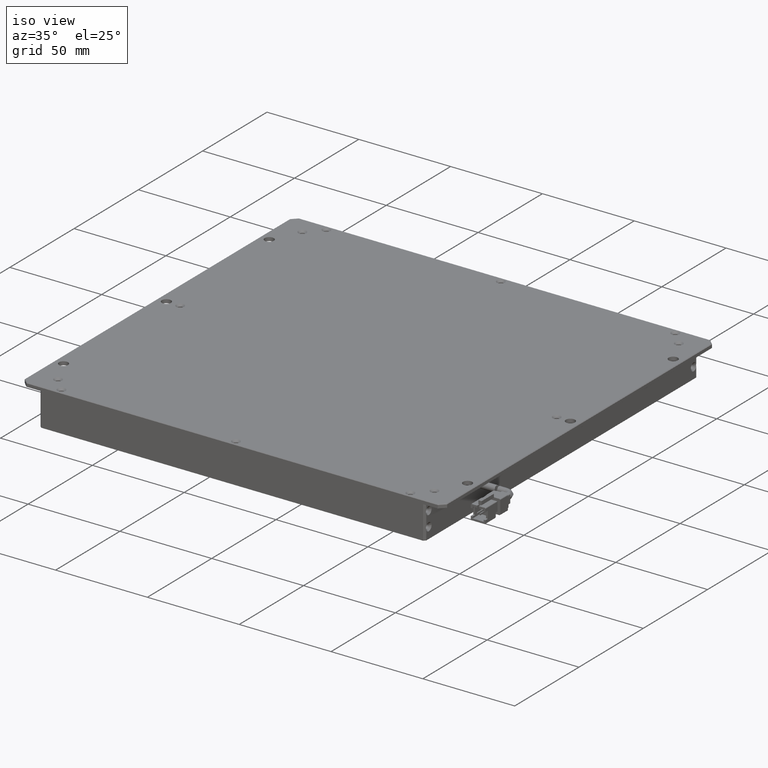
[diagram: clean part render]
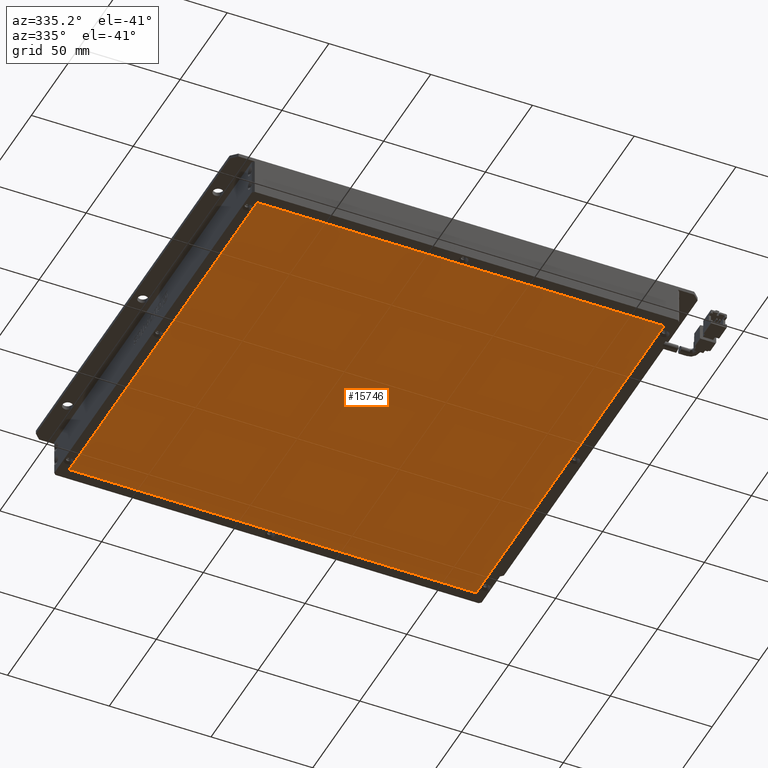
[diagram: tour spotlight — one face highlighted and labeled with its STEP entity id]
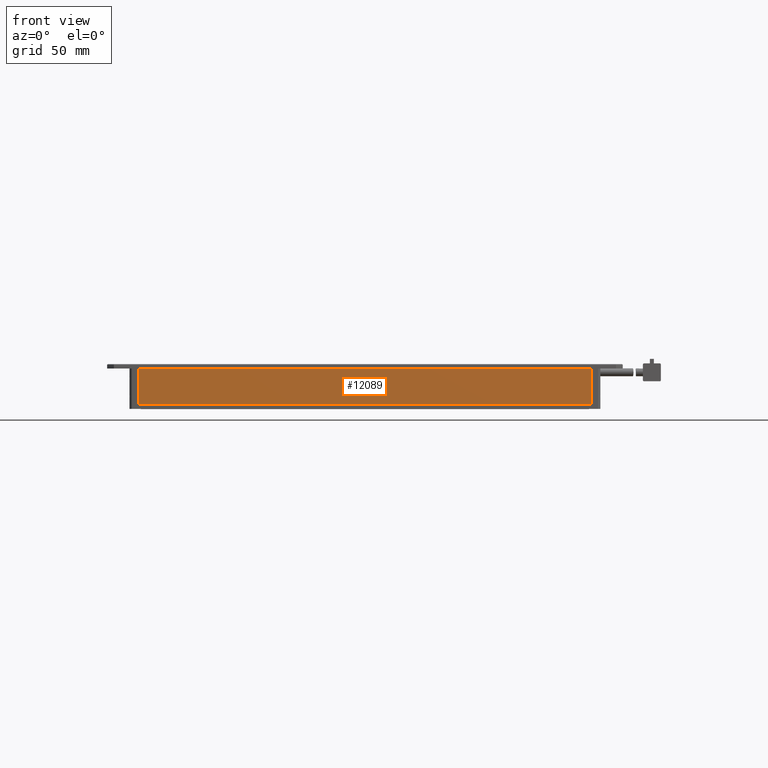
[diagram: tour spotlight — one face highlighted and labeled with its STEP entity id]
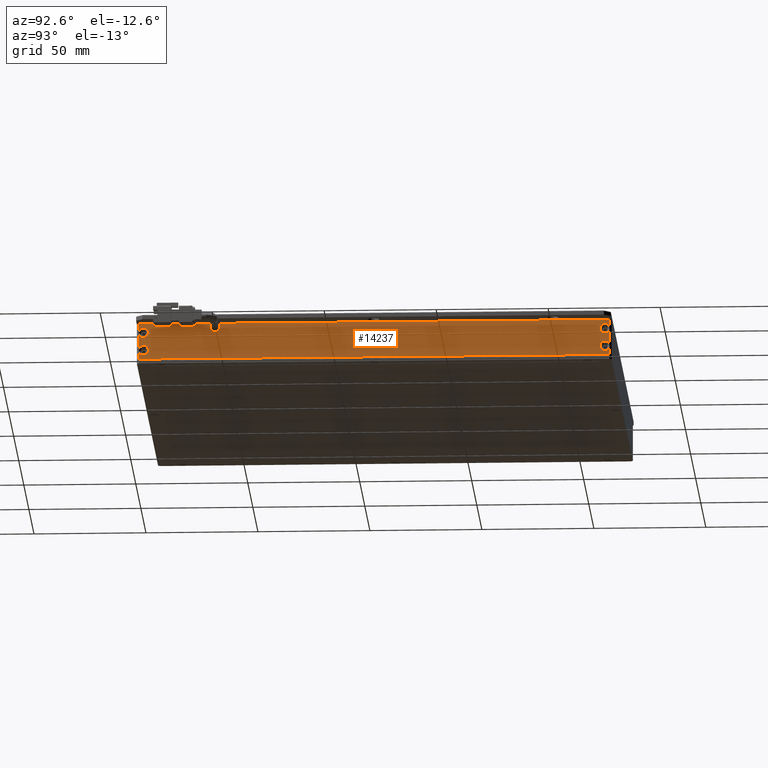
[diagram: tour spotlight — one face highlighted and labeled with its STEP entity id]
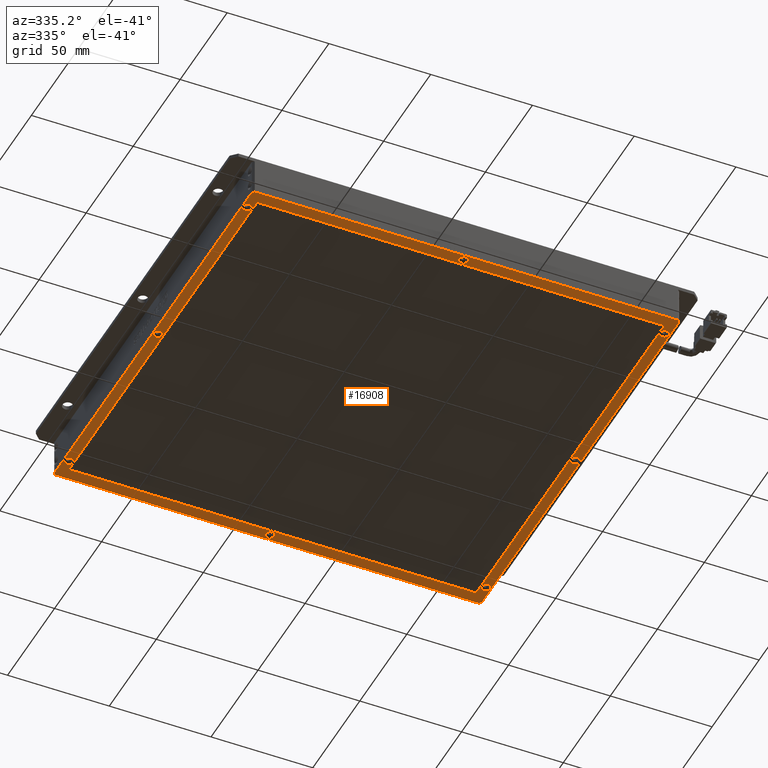
[diagram: tour spotlight — one face highlighted and labeled with its STEP entity id]
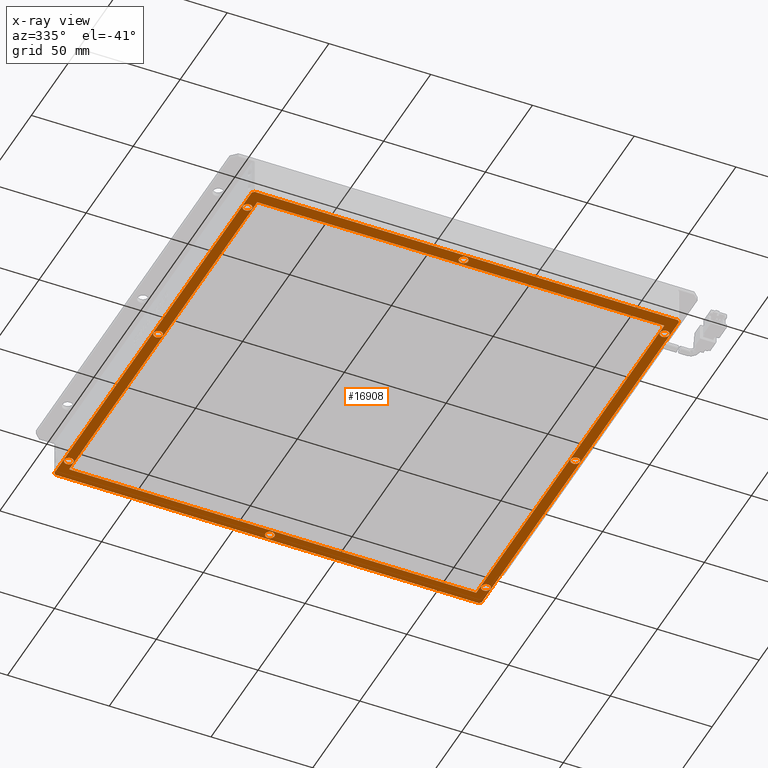
[diagram: x-ray of the same camera — body ghosted, this tour face saturated]
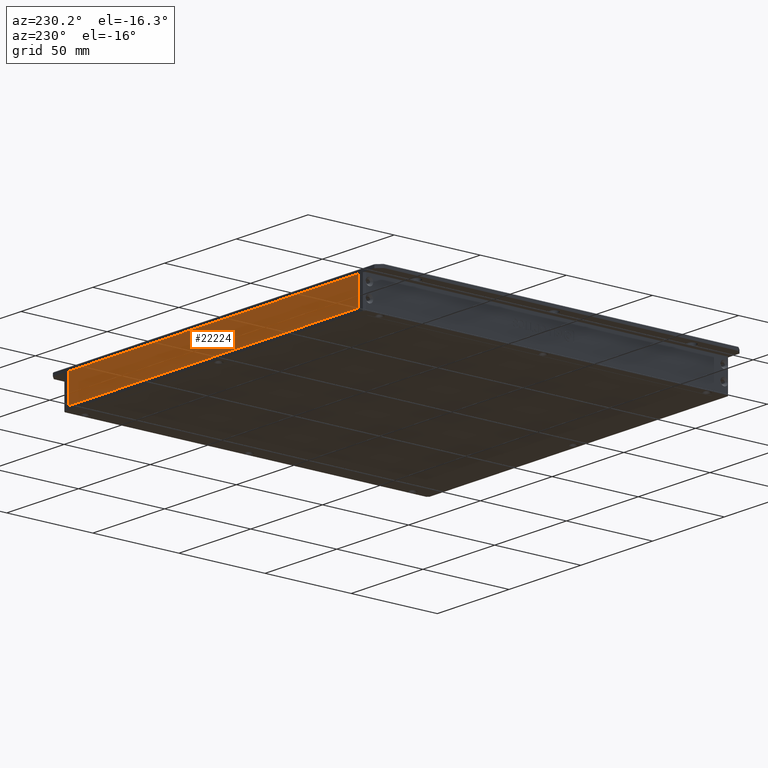
[diagram: tour spotlight — one face highlighted and labeled with its STEP entity id]
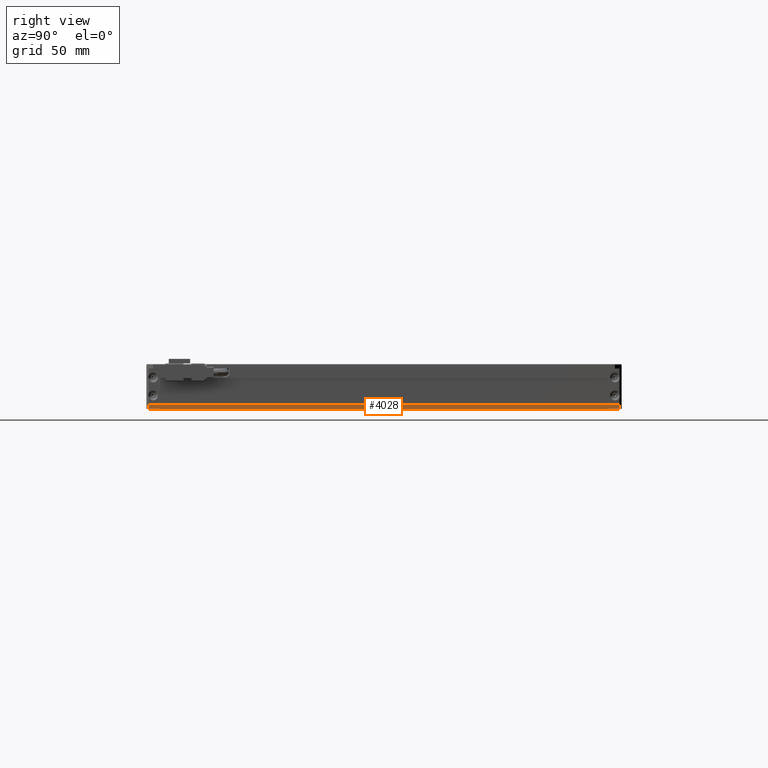
[diagram: tour spotlight — one face highlighted and labeled with its STEP entity id]
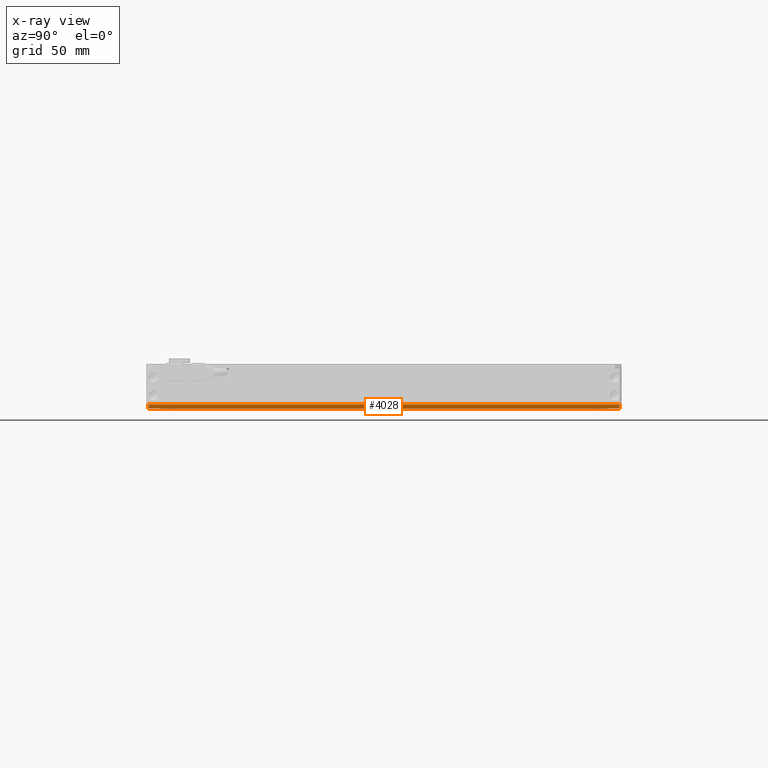
[diagram: x-ray of the same camera — body ghosted, this tour face saturated]
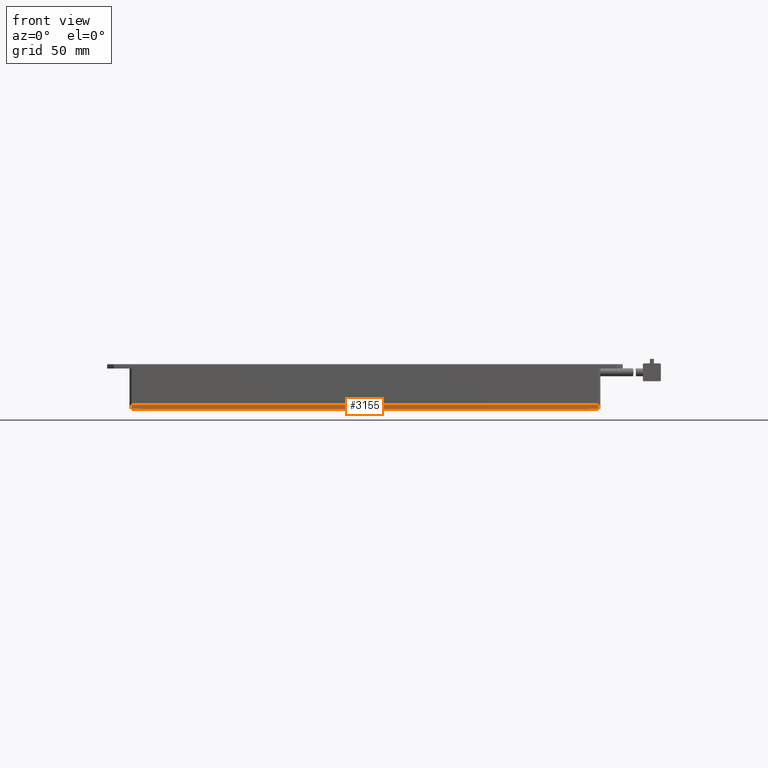
[diagram: tour spotlight — one face highlighted and labeled with its STEP entity id]
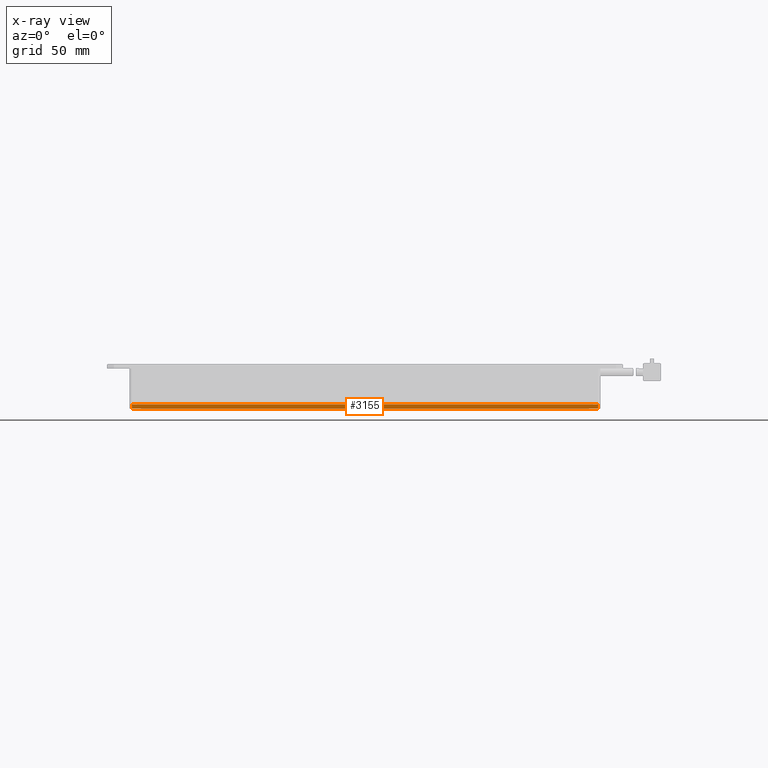
[diagram: x-ray of the same camera — body ghosted, this tour face saturated]
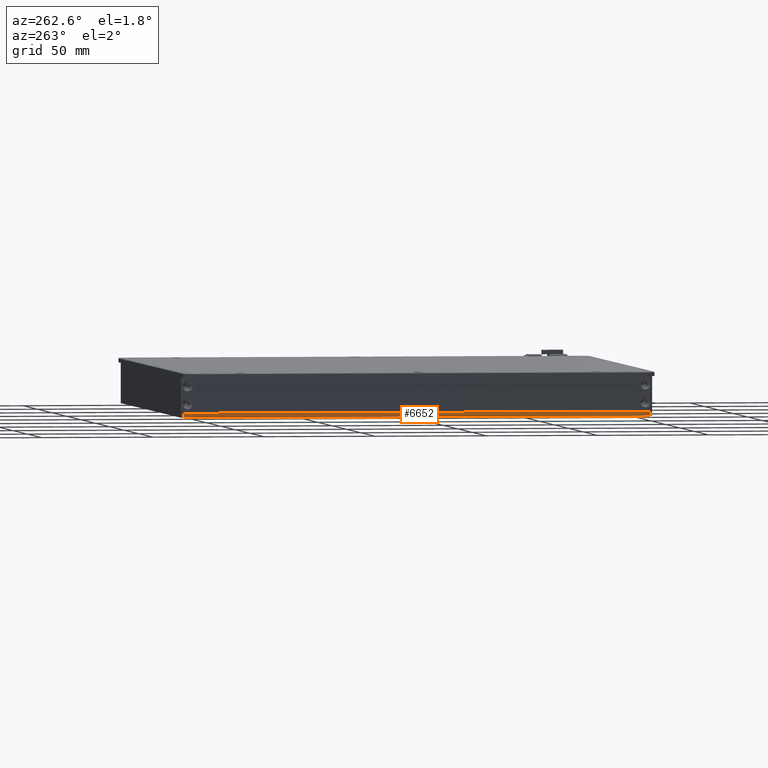
[diagram: tour spotlight — one face highlighted and labeled with its STEP entity id]
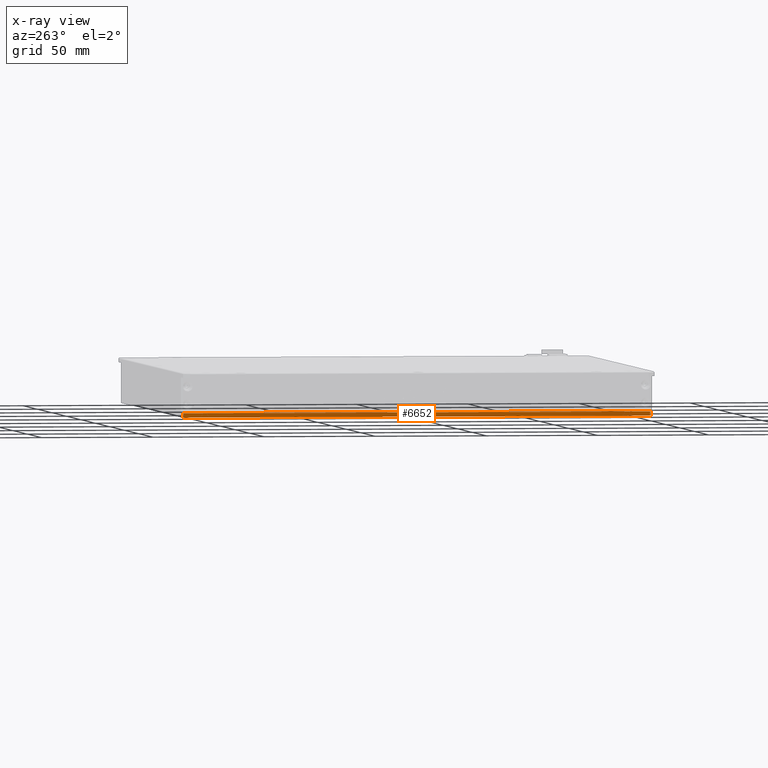
[diagram: x-ray of the same camera — body ghosted, this tour face saturated]
A machine part: a face-by-face anatomy tour. The part has 520 B-rep faces; the first image is the clean iso view, then the 8 largest visible faces are spotlighted one at a time (largest first), each with its STEP entity span.

Face 1 — auxiliary view, entity #15746. In plain terms, the highlighted planar face has unit normal (0, 0, -1).
Definition (entity closure, byte-faithful):
#110 = PLANE ( 'NONE',  #2365 ) ;
#925 = CARTESIAN_POINT ( 'NONE',  ( 118.6657505824761600, -133.3787539827807500, -18.10000000002364800 ) ) ;
#1508 = ORIENTED_EDGE ( 'NONE', *, *, #16861, .T. ) ;
#1951 = CARTESIAN_POINT ( 'NONE',  ( 0.0000000000000000000, 0.0000000000000000000, -18.10000000002364800 ) ) ;
#2280 = EDGE_CURVE ( 'NONE', #4877, #3523, #6398, .T. ) ;
#2365 = AXIS2_PLACEMENT_3D ( 'NONE', #1951, #14124, #3691 ) ;
#3523 = VERTEX_POINT ( 'NONE', #925 ) ;
#3691 = DIRECTION ( 'NONE',  ( -1.000000000000000000, 0.0000000000000000000, 0.0000000000000000000 ) ) ;
#3785 = CARTESIAN_POINT ( 'NONE',  ( 118.6657505824761400, 66.62124601721929200, -18.10000000002364800 ) ) ;
#3914 = CARTESIAN_POINT ( 'NONE',  ( -81.33424941752386400, 66.62124601721919200, -18.10000000002364800 ) ) ;
#3952 = DIRECTION ( 'NONE',  ( 1.387778780781445200E-016, -1.000000000000000000, 0.0000000000000000000 ) ) ;
#4877 = VERTEX_POINT ( 'NONE', #9749 ) ;
#4919 = VECTOR ( 'NONE', #18171, 1000.000000000000000 ) ;
#6046 = ORIENTED_EDGE ( 'NONE', *, *, #2280, .T. ) ;
#6189 = VERTEX_POINT ( 'NONE', #21539 ) ;
#6398 = LINE ( 'NONE', #3785, #11038 ) ;
#6492 = VERTEX_POINT ( 'NONE', #3914 ) ;
#6962 = EDGE_LOOP ( 'NONE', ( #15878, #1508, #20910, #6046 ) ) ;
#8834 = CARTESIAN_POINT ( 'NONE',  ( -81.33424941752386400, -133.3787539827808600, -18.10000000002364800 ) ) ;
#9203 = CARTESIAN_POINT ( 'NONE',  ( -81.33424941752386400, 66.62124601721919200, -18.10000000002364800 ) ) ;
#9749 = CARTESIAN_POINT ( 'NONE',  ( 118.6657505824761400, 66.62124601721929200, -18.10000000002364800 ) ) ;
#10434 = LINE ( 'NONE', #8834, #19593 ) ;
#10942 = DIRECTION ( 'NONE',  ( 1.000000000000000000, 4.857225732735059900E-016, 0.0000000000000000000 ) ) ;
#11038 = VECTOR ( 'NONE', #3952, 1000.000000000000000 ) ;
#12874 = VECTOR ( 'NONE', #10942, 1000.000000000000000 ) ;
#13124 = EDGE_CURVE ( 'NONE', #3523, #6189, #14178, .T. ) ;
#14124 = DIRECTION ( 'NONE',  ( 0.0000000000000000000, 0.0000000000000000000, -1.000000000000000000 ) ) ;
#14178 = LINE ( 'NONE', #14438, #4919 ) ;
#14438 = CARTESIAN_POINT ( 'NONE',  ( 118.6657505824761600, -133.3787539827807500, -18.10000000002364800 ) ) ;
#15746 = ADVANCED_FACE ( 'NONE', ( #20465 ), #110, .T. ) ;
#15878 = ORIENTED_EDGE ( 'NONE', *, *, #13124, .T. ) ;
#16861 = EDGE_CURVE ( 'NONE', #6189, #6492, #10434, .T. ) ;
#17449 = LINE ( 'NONE', #9203, #12874 ) ;
#17647 = EDGE_CURVE ( 'NONE', #6492, #4877, #17449, .T. ) ;
#18171 = DIRECTION ( 'NONE',  ( -1.000000000000000000, -5.551115123125782700E-016, 0.0000000000000000000 ) ) ;
#19593 = VECTOR ( 'NONE', #20902, 1000.000000000000000 ) ;
#20465 = FACE_OUTER_BOUND ( 'NONE', #6962, .T. ) ;
#20902 = DIRECTION ( 'NONE',  ( 0.0000000000000000000, 1.000000000000000000, 0.0000000000000000000 ) ) ;
#20910 = ORIENTED_EDGE ( 'NONE', *, *, #17647, .T. ) ;
#21539 = CARTESIAN_POINT ( 'NONE',  ( -81.33424941752386400, -133.3787539827808600, -18.10000000002364800 ) ) ;

Face 2 — front view, entity #12089. In plain terms, the highlighted planar face has unit normal (-0, 1, 0).
Definition (entity closure, byte-faithful):
#342 = DIRECTION ( 'NONE',  ( 1.000000000000000000, 1.243375699538492300E-016, 1.243375699538492300E-016 ) ) ;
#4183 = CARTESIAN_POINT ( 'NONE',  ( 18.66575058247614600, -139.3787539827808400, -16.00000000002366100 ) ) ;
#4692 = DIRECTION ( 'NONE',  ( 1.000000000000000000, 1.243375699538492300E-016, 1.243375699538492300E-016 ) ) ;
#4785 = VERTEX_POINT ( 'NONE', #9444 ) ;
#5374 = EDGE_CURVE ( 'NONE', #14993, #4785, #19439, .T. ) ;
#6177 = VECTOR ( 'NONE', #14021, 1000.000000000000000 ) ;
#6822 = CARTESIAN_POINT ( 'NONE',  ( -82.48424941752384100, -139.3787539827808400, -2.364775042451583400E-011 ) ) ;
#6872 = CARTESIAN_POINT ( 'NONE',  ( -82.48424941752384100, -139.3787539827808400, -8.000000000023661100 ) ) ;
#7089 = CARTESIAN_POINT ( 'NONE',  ( 119.8157505824761700, -139.3787539827808400, -8.000000000023638000 ) ) ;
#7414 = EDGE_CURVE ( 'NONE', #10525, #14993, #17397, .T. ) ;
#7704 = VECTOR ( 'NONE', #22435, 1000.000000000000000 ) ;
#9310 = AXIS2_PLACEMENT_3D ( 'NONE', #21096, #10760, #342 ) ;
#9420 = CARTESIAN_POINT ( 'NONE',  ( -82.48424941752384100, -139.3787539827808400, -16.00000000002365400 ) ) ;
#9444 = CARTESIAN_POINT ( 'NONE',  ( 119.8157505824761700, -139.3787539827808400, -16.00000000002364700 ) ) ;
#10525 = VERTEX_POINT ( 'NONE', #6822 ) ;
#10760 = DIRECTION ( 'NONE',  ( -1.243375699538492300E-016, 1.000000000000000000, 0.0000000000000000000 ) ) ;
#11108 = DIRECTION ( 'NONE',  ( -1.000000000000000000, -1.243375699538492300E-016, -1.243375699538492300E-016 ) ) ;
#11573 = CARTESIAN_POINT ( 'NONE',  ( 119.8157505824761700, -139.3787539827808400, -2.364081153061192700E-011 ) ) ;
#11735 = ORIENTED_EDGE ( 'NONE', *, *, #18771, .F. ) ;
#11740 = VERTEX_POINT ( 'NONE', #9420 ) ;
#11996 = EDGE_CURVE ( 'NONE', #11740, #10525, #20965, .T. ) ;
#12089 = ADVANCED_FACE ( 'NONE', ( #18247 ), #12439, .F. ) ;
#12308 = VECTOR ( 'NONE', #4692, 1000.000000000000000 ) ;
#12439 = PLANE ( 'NONE',  #9310 ) ;
#12556 = ORIENTED_EDGE ( 'NONE', *, *, #5374, .F. ) ;
#12831 = ORIENTED_EDGE ( 'NONE', *, *, #7414, .F. ) ;
#13346 = CARTESIAN_POINT ( 'NONE',  ( 18.66575058247614600, -139.3787539827808400, -2.363560736018399700E-011 ) ) ;
#13368 = ORIENTED_EDGE ( 'NONE', *, *, #11996, .F. ) ;
#14021 = DIRECTION ( 'NONE',  ( 1.243375699538492300E-016, 1.545983130202835100E-032, -1.000000000000000000 ) ) ;
#14993 = VERTEX_POINT ( 'NONE', #11573 ) ;
#16018 = LINE ( 'NONE', #4183, #21127 ) ;
#17397 = LINE ( 'NONE', #13346, #12308 ) ;
#18247 = FACE_OUTER_BOUND ( 'NONE', #22453, .T. ) ;
#18771 = EDGE_CURVE ( 'NONE', #4785, #11740, #16018, .T. ) ;
#19439 = LINE ( 'NONE', #7089, #6177 ) ;
#20965 = LINE ( 'NONE', #6872, #7704 ) ;
#21096 = CARTESIAN_POINT ( 'NONE',  ( 18.66575058247614600, -139.3787539827808400, -8.000000000023650400 ) ) ;
#21127 = VECTOR ( 'NONE', #11108, 1000.000000000000000 ) ;
#22435 = DIRECTION ( 'NONE',  ( -1.243375699538492300E-016, -1.545983130202835100E-032, 1.000000000000000000 ) ) ;
#22453 = EDGE_LOOP ( 'NONE', ( #11735, #12556, #12831, #13368 ) ) ;

Face 3 — auxiliary view, entity #14237. In plain terms, the highlighted planar face has unit normal (1, 0, 0).
Definition (entity closure, byte-faithful):
#15 = VECTOR ( 'NONE', #10726, 1000.000000000000000 ) ;
#406 = DIRECTION ( 'NONE',  ( -1.000000000000000000, -1.309225264888156400E-016, -0.0000000000000000000 ) ) ;
#623 = AXIS2_PLACEMENT_3D ( 'NONE', #1434, #962, #661 ) ;
#661 = DIRECTION ( 'NONE',  ( 0.0000000000000000000, -1.000000000000000000, 4.731064025338034900E-015 ) ) ;
#701 = VERTEX_POINT ( 'NONE', #1547 ) ;
#744 = DIRECTION ( 'NONE',  ( 0.0000000000000000000, -1.000000000000000000, 0.0000000000000000000 ) ) ;
#764 = ORIENTED_EDGE ( 'NONE', *, *, #13029, .T. ) ;
#815 = EDGE_CURVE ( 'NONE', #18679, #7157, #8672, .T. ) ;
#962 = DIRECTION ( 'NONE',  ( -1.000000000000000000, -1.309225264888156400E-016, -0.0000000000000000000 ) ) ;
#1001 = VERTEX_POINT ( 'NONE', #14170 ) ;
#1038 = VERTEX_POINT ( 'NONE', #17661 ) ;
#1211 = VECTOR ( 'NONE', #12329, 1000.000000000000000 ) ;
#1334 = DIRECTION ( 'NONE',  ( -3.602839574495699400E-035, 2.751886685293596300E-019, 1.000000000000000000 ) ) ;
#1427 = EDGE_CURVE ( 'NONE', #3386, #1001, #2113, .T. ) ;
#1434 = CARTESIAN_POINT ( 'NONE',  ( 123.6657505824716200, -136.3787539827807800, -12.00000000002363800 ) ) ;
#1547 = CARTESIAN_POINT ( 'NONE',  ( 123.6657505824738900, -106.4787539827785000, -1.700000000023614800 ) ) ;
#1580 = AXIS2_PLACEMENT_3D ( 'NONE', #12832, #2423, #14598 ) ;
#1600 = CARTESIAN_POINT ( 'NONE',  ( 123.6657505824761500, -102.2787539827807700, -8.000000000023638000 ) ) ;
#1820 = DIRECTION ( 'NONE',  ( 3.602839574495699400E-035, -2.751886685293596300E-019, -1.000000000000000000 ) ) ;
#1901 = CARTESIAN_POINT ( 'NONE',  ( 123.6657505824761500, -33.37875398278074400, -2.361999484890020500E-011 ) ) ;
#1935 = EDGE_CURVE ( 'NONE', #3355, #5199, #16178, .T. ) ;
#1972 = EDGE_CURVE ( 'NONE', #3735, #9019, #16711, .T. ) ;
#2113 = LINE ( 'NONE', #18684, #14878 ) ;
#2155 = EDGE_CURVE ( 'NONE', #1001, #8115, #4499, .T. ) ;
#2423 = DIRECTION ( 'NONE',  ( -1.000000000000000000, -1.309225264888156400E-016, -0.0000000000000000000 ) ) ;
#2426 = LINE ( 'NONE', #14235, #11148 ) ;
#2482 = CARTESIAN_POINT ( 'NONE',  ( 123.6657505824716200, -104.3787539827807800, -1.700000000023614000 ) ) ;
#2567 = ORIENTED_EDGE ( 'NONE', *, *, #1935, .T. ) ;
#2875 = VECTOR ( 'NONE', #19148, 1000.000000000000000 ) ;
#3160 = EDGE_CURVE ( 'NONE', #15393, #14430, #16558, .T. ) ;
#3176 = ORIENTED_EDGE ( 'NONE', *, *, #11376, .T. ) ;
#3324 = DIRECTION ( 'NONE',  ( 3.602839574495699400E-035, -2.751886685293596300E-019, -1.000000000000000000 ) ) ;
#3355 = VERTEX_POINT ( 'NONE', #9775 ) ;
#3386 = VERTEX_POINT ( 'NONE', #4855 ) ;
#3735 = VERTEX_POINT ( 'NONE', #9068 ) ;
#4001 = ORIENTED_EDGE ( 'NONE', *, *, #18755, .T. ) ;
#4242 = DIRECTION ( 'NONE',  ( 0.0000000000000000000, -1.000000000000000000, 0.0000000000000000000 ) ) ;
#4458 = CARTESIAN_POINT ( 'NONE',  ( 123.6657505824716200, -134.1787539827560400, -12.00000000002363800 ) ) ;
#4499 = LINE ( 'NONE', #8885, #13745 ) ;
#4812 = ORIENTED_EDGE ( 'NONE', *, *, #815, .T. ) ;
#4855 = CARTESIAN_POINT ( 'NONE',  ( 123.6657505824761500, -106.4787539827807900, -2.364254625408790400E-011 ) ) ;
#5059 = VERTEX_POINT ( 'NONE', #12254 ) ;
#5199 = VERTEX_POINT ( 'NONE', #14368 ) ;
#5235 = LINE ( 'NONE', #21055, #15 ) ;
#5249 = CARTESIAN_POINT ( 'NONE',  ( 123.6657505824781500, 71.62124601721920700, -11.08348486101283800 ) ) ;
#5409 = EDGE_CURVE ( 'NONE', #8674, #3735, #10263, .T. ) ;
#5547 = DIRECTION ( 'NONE',  ( 1.000000000000000000, 1.309225264888156400E-016, 0.0000000000000000000 ) ) ;
#5665 = ORIENTED_EDGE ( 'NONE', *, *, #17392, .T. ) ;
#5837 = LINE ( 'NONE', #1901, #1211 ) ;
#6088 = CIRCLE ( 'NONE', #15486, 2.100000000010787500 ) ;
#6110 = CARTESIAN_POINT ( 'NONE',  ( 123.6657505824715900, 69.62124601721930600, -12.00000000002363800 ) ) ;
#6133 = EDGE_CURVE ( 'NONE', #21453, #1038, #16601, .T. ) ;
#6154 = CARTESIAN_POINT ( 'NONE',  ( 123.6657505824738600, 71.62124601721917800, -12.91651513902419000 ) ) ;
#6183 = DIRECTION ( 'NONE',  ( -1.000000000000000000, -1.309225264888156400E-016, -0.0000000000000000000 ) ) ;
#6257 = DIRECTION ( 'NONE',  ( 0.0000000000000000000, -1.000000000000000000, 0.0000000000000000000 ) ) ;
#6410 = ORIENTED_EDGE ( 'NONE', *, *, #6133, .T. ) ;
#6829 = DIRECTION ( 'NONE',  ( -1.000000000000000000, -1.309225264888156400E-016, -0.0000000000000000000 ) ) ;
#7012 = ORIENTED_EDGE ( 'NONE', *, *, #12331, .T. ) ;
#7157 = VERTEX_POINT ( 'NONE', #5249 ) ;
#7176 = DIRECTION ( 'NONE',  ( -1.000000000000000000, -1.309225264888156400E-016, -0.0000000000000000000 ) ) ;
#7328 = ORIENTED_EDGE ( 'NONE', *, *, #22309, .T. ) ;
#7422 = LINE ( 'NONE', #1600, #20648 ) ;
#7771 = VERTEX_POINT ( 'NONE', #21247 ) ;
#8059 = CARTESIAN_POINT ( 'NONE',  ( 123.6657505824716200, -134.1787539827560400, -4.000000000023637100 ) ) ;
#8115 = VERTEX_POINT ( 'NONE', #10293 ) ;
#8159 = CARTESIAN_POINT ( 'NONE',  ( 123.6657505824761200, 71.62124601721919200, -2.361999484890020500E-011 ) ) ;
#8672 = CIRCLE ( 'NONE', #10886, 2.200000000007598500 ) ;
#8674 = VERTEX_POINT ( 'NONE', #8059 ) ;
#8822 = DIRECTION ( 'NONE',  ( 3.602839574495699400E-035, -2.751886685293596300E-019, -1.000000000000000000 ) ) ;
#8885 = CARTESIAN_POINT ( 'NONE',  ( 123.6657505824761600, -138.3787539827808400, -8.000000000023638000 ) ) ;
#9019 = VERTEX_POINT ( 'NONE', #10655 ) ;
#9068 = CARTESIAN_POINT ( 'NONE',  ( 123.6657505824738900, -138.3787539827808400, -4.916515139044489200 ) ) ;
#9775 = CARTESIAN_POINT ( 'NONE',  ( 123.6657505824761600, -138.3787539827808400, -16.00000000002364700 ) ) ;
#9803 = VERTEX_POINT ( 'NONE', #8159 ) ;
#10035 = AXIS2_PLACEMENT_3D ( 'NONE', #10203, #22265, #11981 ) ;
#10037 = CIRCLE ( 'NONE', #13554, 2.200000000024765300 ) ;
#10203 = CARTESIAN_POINT ( 'NONE',  ( 123.6657505824715900, 69.62124601721930600, -4.000000000023637100 ) ) ;
#10263 = CIRCLE ( 'NONE', #13296, 2.200000000024765300 ) ;
#10293 = CARTESIAN_POINT ( 'NONE',  ( 123.6657505824738900, -138.3787539827808400, -3.083484861002782300 ) ) ;
#10297 = EDGE_LOOP ( 'NONE', ( #15252, #15824, #16832, #17055, #17672, #17947, #18706, #19758, #20562, #21401, #22477, #764, #2567, #3176, #4001, #4812, #5665, #6410, #7012, #7328 ) ) ;
#10337 = CARTESIAN_POINT ( 'NONE',  ( 123.6657505824738600, 71.62124601721920700, -4.916515139024128600 ) ) ;
#10565 = CARTESIAN_POINT ( 'NONE',  ( 123.6657505824761600, -138.3787539827808400, -8.000000000023638000 ) ) ;
#10655 = CARTESIAN_POINT ( 'NONE',  ( 123.6657505824738900, -138.3787539827808400, -11.08348486100278400 ) ) ;
#10726 = DIRECTION ( 'NONE',  ( -3.602839574495699400E-035, 2.751886685293596300E-019, 1.000000000000000000 ) ) ;
#10824 = CARTESIAN_POINT ( 'NONE',  ( 123.6657505824716200, -136.3787539827807800, -12.00000000002363800 ) ) ;
#10886 = AXIS2_PLACEMENT_3D ( 'NONE', #6110, #6183, #6257 ) ;
#11109 = EDGE_CURVE ( 'NONE', #9019, #15393, #20683, .T. ) ;
#11148 = VECTOR ( 'NONE', #15956, 1000.000000000000000 ) ;
#11152 = DIRECTION ( 'NONE',  ( -1.000000000000000000, -1.309225264888156400E-016, -0.0000000000000000000 ) ) ;
#11376 = EDGE_CURVE ( 'NONE', #5199, #18836, #21767, .T. ) ;
#11469 = LINE ( 'NONE', #10565, #20606 ) ;
#11511 = EDGE_CURVE ( 'NONE', #7771, #5059, #7422, .T. ) ;
#11829 = VERTEX_POINT ( 'NONE', #14789 ) ;
#11981 = DIRECTION ( 'NONE',  ( 0.0000000000000000000, -1.000000000000000000, 0.0000000000000000000 ) ) ;
#12254 = CARTESIAN_POINT ( 'NONE',  ( 123.6657505824738900, -102.2787539827830400, -1.700000000023614800 ) ) ;
#12329 = DIRECTION ( 'NONE',  ( 1.309225264888156400E-016, -1.000000000000000000, 2.751886685293596300E-019 ) ) ;
#12331 = EDGE_CURVE ( 'NONE', #1038, #11829, #15858, .T. ) ;
#12565 = DIRECTION ( 'NONE',  ( 0.0000000000000000000, -1.000000000000000000, 3.942553354448362500E-015 ) ) ;
#12581 = LINE ( 'NONE', #13464, #17133 ) ;
#12832 = CARTESIAN_POINT ( 'NONE',  ( 123.6657505824715900, 69.62124601721930600, -12.00000000002363800 ) ) ;
#13029 = EDGE_CURVE ( 'NONE', #14430, #3355, #11469, .T. ) ;
#13296 = AXIS2_PLACEMENT_3D ( 'NONE', #17525, #7176, #19272 ) ;
#13464 = CARTESIAN_POINT ( 'NONE',  ( 123.6657505824761400, 71.62124601721920700, -8.000000000023638000 ) ) ;
#13554 = AXIS2_PLACEMENT_3D ( 'NONE', #17180, #6829, #18932 ) ;
#13561 = EDGE_CURVE ( 'NONE', #8115, #8674, #10037, .T. ) ;
#13586 = CARTESIAN_POINT ( 'NONE',  ( 123.6657505824761600, -138.3787539827808400, -8.000000000023638000 ) ) ;
#13745 = VECTOR ( 'NONE', #8822, 1000.000000000000000 ) ;
#13908 = AXIS2_PLACEMENT_3D ( 'NONE', #21465, #11152, #744 ) ;
#14170 = CARTESIAN_POINT ( 'NONE',  ( 123.6657505824761600, -138.3787539827808400, -2.364254625408790400E-011 ) ) ;
#14235 = CARTESIAN_POINT ( 'NONE',  ( 123.6657505824761500, -106.4787539827807900, -8.000000000023638000 ) ) ;
#14237 = ADVANCED_FACE ( 'NONE', ( #17256 ), #15829, .T. ) ;
#14368 = CARTESIAN_POINT ( 'NONE',  ( 123.6657505824761400, 71.62124601721916400, -16.00000000002364000 ) ) ;
#14430 = VERTEX_POINT ( 'NONE', #21694 ) ;
#14598 = DIRECTION ( 'NONE',  ( 0.0000000000000000000, -1.000000000000000000, 0.0000000000000000000 ) ) ;
#14656 = DIRECTION ( 'NONE',  ( -1.000000000000000000, -1.309225264888156400E-016, -0.0000000000000000000 ) ) ;
#14778 = AXIS2_PLACEMENT_3D ( 'NONE', #10824, #406, #12565 ) ;
#14789 = CARTESIAN_POINT ( 'NONE',  ( 123.6657505824781500, 71.62124601721920700, -3.083484861012836500 ) ) ;
#14878 = VECTOR ( 'NONE', #19442, 1000.000000000000000 ) ;
#15252 = ORIENTED_EDGE ( 'NONE', *, *, #17574, .T. ) ;
#15393 = VERTEX_POINT ( 'NONE', #4458 ) ;
#15486 = AXIS2_PLACEMENT_3D ( 'NONE', #2482, #14656, #4242 ) ;
#15798 = CARTESIAN_POINT ( 'NONE',  ( 123.6657505824715900, 67.42124601721171500, -12.00000000002363800 ) ) ;
#15824 = ORIENTED_EDGE ( 'NONE', *, *, #11511, .T. ) ;
#15829 = PLANE ( 'NONE',  #17600 ) ;
#15858 = CIRCLE ( 'NONE', #10035, 2.200000000007598500 ) ;
#15907 = CARTESIAN_POINT ( 'NONE',  ( 123.6657505824761500, -33.37875398278074400, -8.000000000023638000 ) ) ;
#15956 = DIRECTION ( 'NONE',  ( -3.602839574495699400E-035, 2.751886685293596300E-019, 1.000000000000000000 ) ) ;
#16178 = LINE ( 'NONE', #18326, #2875 ) ;
#16531 = CIRCLE ( 'NONE', #1580, 2.200000000007598500 ) ;
#16558 = CIRCLE ( 'NONE', #623, 2.200000000024765300 ) ;
#16599 = CARTESIAN_POINT ( 'NONE',  ( 123.6657505824761400, 71.62124601721915000, -8.000000000023638000 ) ) ;
#16601 = CIRCLE ( 'NONE', #13908, 2.200000000007598500 ) ;
#16711 = LINE ( 'NONE', #13586, #20200 ) ;
#16832 = ORIENTED_EDGE ( 'NONE', *, *, #17701, .T. ) ;
#17055 = ORIENTED_EDGE ( 'NONE', *, *, #18715, .T. ) ;
#17133 = VECTOR ( 'NONE', #1334, 1000.000000000000000 ) ;
#17180 = CARTESIAN_POINT ( 'NONE',  ( 123.6657505824716200, -136.3787539827807800, -4.000000000023637100 ) ) ;
#17256 = FACE_OUTER_BOUND ( 'NONE', #10297, .T. ) ;
#17325 = DIRECTION ( 'NONE',  ( 3.602839574495699400E-035, -2.751886685293596300E-019, -1.000000000000000000 ) ) ;
#17392 = EDGE_CURVE ( 'NONE', #7157, #21453, #5235, .T. ) ;
#17525 = CARTESIAN_POINT ( 'NONE',  ( 123.6657505824716200, -136.3787539827807800, -4.000000000023637100 ) ) ;
#17574 = EDGE_CURVE ( 'NONE', #9803, #7771, #5837, .T. ) ;
#17600 = AXIS2_PLACEMENT_3D ( 'NONE', #15907, #5547, #17618 ) ;
#17618 = DIRECTION ( 'NONE',  ( 1.309225264888156400E-016, -1.000000000000000000, 2.751886685293596300E-019 ) ) ;
#17661 = CARTESIAN_POINT ( 'NONE',  ( 123.6657505824715900, 67.42124601721171500, -4.000000000023637100 ) ) ;
#17672 = ORIENTED_EDGE ( 'NONE', *, *, #1427, .T. ) ;
#17701 = EDGE_CURVE ( 'NONE', #5059, #701, #6088, .T. ) ;
#17947 = ORIENTED_EDGE ( 'NONE', *, *, #2155, .T. ) ;
#18326 = CARTESIAN_POINT ( 'NONE',  ( 123.6657505824761500, -33.37875398278074400, -16.00000000002364700 ) ) ;
#18337 = DIRECTION ( 'NONE',  ( -3.602839574495699400E-035, 2.751886685293596300E-019, 1.000000000000000000 ) ) ;
#18679 = VERTEX_POINT ( 'NONE', #15798 ) ;
#18684 = CARTESIAN_POINT ( 'NONE',  ( 123.6657505824761500, -33.37875398278074400, -2.364254625408790400E-011 ) ) ;
#18706 = ORIENTED_EDGE ( 'NONE', *, *, #13561, .T. ) ;
#18715 = EDGE_CURVE ( 'NONE', #701, #3386, #2426, .T. ) ;
#18755 = EDGE_CURVE ( 'NONE', #18836, #18679, #16531, .T. ) ;
#18836 = VERTEX_POINT ( 'NONE', #6154 ) ;
#18932 = DIRECTION ( 'NONE',  ( 0.0000000000000000000, -1.000000000000000000, 3.548298019003525900E-015 ) ) ;
#19148 = DIRECTION ( 'NONE',  ( -1.309225264888156400E-016, 1.000000000000000000, -2.751886685293596300E-019 ) ) ;
#19272 = DIRECTION ( 'NONE',  ( 0.0000000000000000000, -1.000000000000000000, 3.548298019003525900E-015 ) ) ;
#19442 = DIRECTION ( 'NONE',  ( 1.309225264888156400E-016, -1.000000000000000000, 2.751886685293596300E-019 ) ) ;
#19758 = ORIENTED_EDGE ( 'NONE', *, *, #5409, .T. ) ;
#20200 = VECTOR ( 'NONE', #17325, 1000.000000000000000 ) ;
#20562 = ORIENTED_EDGE ( 'NONE', *, *, #1972, .T. ) ;
#20606 = VECTOR ( 'NONE', #1820, 1000.000000000000000 ) ;
#20648 = VECTOR ( 'NONE', #3324, 1000.000000000000000 ) ;
#20666 = VECTOR ( 'NONE', #18337, 1000.000000000000000 ) ;
#20683 = CIRCLE ( 'NONE', #14778, 2.200000000024765300 ) ;
#21055 = CARTESIAN_POINT ( 'NONE',  ( 123.6657505824761400, 71.62124601721920700, -8.000000000023638000 ) ) ;
#21247 = CARTESIAN_POINT ( 'NONE',  ( 123.6657505824761500, -102.2787539827807700, -2.362693374280411300E-011 ) ) ;
#21401 = ORIENTED_EDGE ( 'NONE', *, *, #11109, .T. ) ;
#21453 = VERTEX_POINT ( 'NONE', #10337 ) ;
#21465 = CARTESIAN_POINT ( 'NONE',  ( 123.6657505824715900, 69.62124601721930600, -4.000000000023637100 ) ) ;
#21694 = CARTESIAN_POINT ( 'NONE',  ( 123.6657505824738900, -138.3787539827808400, -12.91651513904449200 ) ) ;
#21767 = LINE ( 'NONE', #16599, #20666 ) ;
#22265 = DIRECTION ( 'NONE',  ( -1.000000000000000000, -1.309225264888156400E-016, -0.0000000000000000000 ) ) ;
#22309 = EDGE_CURVE ( 'NONE', #11829, #9803, #12581, .T. ) ;
#22477 = ORIENTED_EDGE ( 'NONE', *, *, #3160, .T. ) ;

Face 4 — auxiliary view, entity #16908. An x-ray twin of the same camera follows (body ghosted, this face saturated) — the face is partly hidden behind the body. In plain terms, the highlighted planar face has unit normal (0, 0, -1).
Definition (entity closure, byte-faithful):
#202 = CIRCLE ( 'NONE', #3992, 2.199999999995733400 ) ;
#448 = VERTEX_POINT ( 'NONE', #17955 ) ;
#504 = CARTESIAN_POINT ( 'NONE',  ( -81.33424941752386400, -133.3787539827808600, -18.00000000002365000 ) ) ;
#512 = ORIENTED_EDGE ( 'NONE', *, *, #19869, .T. ) ;
#583 = CARTESIAN_POINT ( 'NONE',  ( 121.1657505824761500, -33.37875398278074400, -18.00000000003319700 ) ) ;
#709 = ORIENTED_EDGE ( 'NONE', *, *, #11078, .T. ) ;
#734 = DIRECTION ( 'NONE',  ( 1.000000000000000000, 0.0000000000000000000, 0.0000000000000000000 ) ) ;
#741 = DIRECTION ( 'NONE',  ( 1.000000000000000000, 0.0000000000000000000, 0.0000000000000000000 ) ) ;
#817 = CARTESIAN_POINT ( 'NONE',  ( -86.03424941751959000, -128.3787539827808100, -17.99999999997635300 ) ) ;
#986 = VERTEX_POINT ( 'NONE', #13541 ) ;
#994 = ORIENTED_EDGE ( 'NONE', *, *, #17538, .T. ) ;
#1017 = LINE ( 'NONE', #20179, #9714 ) ;
#1018 = CIRCLE ( 'NONE', #10937, 2.199999999979801200 ) ;
#1154 = CARTESIAN_POINT ( 'NONE',  ( 123.6657505824761400, 71.62124601721922100, -18.00000000002365000 ) ) ;
#1236 = ORIENTED_EDGE ( 'NONE', *, *, #20818, .F. ) ;
#1306 = VECTOR ( 'NONE', #13292, 1000.000000000000000 ) ;
#1323 = VERTEX_POINT ( 'NONE', #12598 ) ;
#1397 = EDGE_LOOP ( 'NONE', ( #512, #16716 ) ) ;
#1504 = DIRECTION ( 'NONE',  ( -0.0000000000000000000, -0.0000000000000000000, 1.000000000000000000 ) ) ;
#1506 = EDGE_CURVE ( 'NONE', #18858, #18599, #1830, .T. ) ;
#1687 = AXIS2_PLACEMENT_3D ( 'NONE', #14234, #3820, #15954 ) ;
#1752 = VERTEX_POINT ( 'NONE', #13193 ) ;
#1830 = CIRCLE ( 'NONE', #20257, 2.199999999995733400 ) ;
#1889 = EDGE_CURVE ( 'NONE', #22345, #986, #1017, .T. ) ;
#2119 = CARTESIAN_POINT ( 'NONE',  ( 121.1657505824761500, -128.3787539827808100, -18.00000000003319700 ) ) ;
#2183 = ORIENTED_EDGE ( 'NONE', *, *, #3305, .T. ) ;
#2216 = EDGE_CURVE ( 'NONE', #19897, #1752, #17780, .T. ) ;
#2265 = CARTESIAN_POINT ( 'NONE',  ( 16.46575058245995700, 69.62124601721919200, -17.99999999997635300 ) ) ;
#2298 = VECTOR ( 'NONE', #12240, 1000.000000000000000 ) ;
#2527 = CARTESIAN_POINT ( 'NONE',  ( 121.1657505824761500, 61.62124601721920000, -18.00000000003319700 ) ) ;
#2810 = ORIENTED_EDGE ( 'NONE', *, *, #15563, .T. ) ;
#2873 = CARTESIAN_POINT ( 'NONE',  ( -86.33424941752385000, 72.62124601721919200, -18.00000000002365000 ) ) ;
#2935 = AXIS2_PLACEMENT_3D ( 'NONE', #583, #3150, #741 ) ;
#2949 = EDGE_CURVE ( 'NONE', #19117, #19317, #13631, .T. ) ;
#2989 = CIRCLE ( 'NONE', #9054, 2.199999999979801200 ) ;
#3024 = CIRCLE ( 'NONE', #5920, 2.200000000016189000 ) ;
#3045 = FACE_BOUND ( 'NONE', #12750, .T. ) ;
#3150 = DIRECTION ( 'NONE',  ( -0.0000000000000000000, -0.0000000000000000000, 1.000000000000000000 ) ) ;
#3189 = EDGE_CURVE ( 'NONE', #15883, #15910, #21157, .T. ) ;
#3305 = EDGE_CURVE ( 'NONE', #15910, #15883, #19254, .T. ) ;
#3353 = CARTESIAN_POINT ( 'NONE',  ( 18.66575058247614600, -136.3787539827807800, -17.99999999997635300 ) ) ;
#3409 = DIRECTION ( 'NONE',  ( -0.0000000000000000000, -0.0000000000000000000, 1.000000000000000000 ) ) ;
#3442 = ORIENTED_EDGE ( 'NONE', *, *, #14384, .T. ) ;
#3609 = FACE_BOUND ( 'NONE', #8221, .T. ) ;
#3672 = AXIS2_PLACEMENT_3D ( 'NONE', #9472, #9549, #9617 ) ;
#3692 = CARTESIAN_POINT ( 'NONE',  ( 20.86575058249233500, 69.62124601721919200, -17.99999999997635300 ) ) ;
#3742 = PLANE ( 'NONE',  #1687 ) ;
#3820 = DIRECTION ( 'NONE',  ( 0.0000000000000000000, 0.0000000000000000000, -1.000000000000000000 ) ) ;
#3875 = DIRECTION ( 'NONE',  ( 1.000000000000000000, 0.0000000000000000000, 0.0000000000000000000 ) ) ;
#3900 = LINE ( 'NONE', #7689, #17157 ) ;
#3972 = ORIENTED_EDGE ( 'NONE', *, *, #13695, .T. ) ;
#3992 = AXIS2_PLACEMENT_3D ( 'NONE', #5221, #17297, #6931 ) ;
#4165 = FACE_BOUND ( 'NONE', #20205, .T. ) ;
#4217 = CARTESIAN_POINT ( 'NONE',  ( -86.33424941752387800, 71.62124601721920700, -18.00000000002365000 ) ) ;
#4291 = DIRECTION ( 'NONE',  ( 1.000000000000000000, 0.0000000000000000000, 0.0000000000000000000 ) ) ;
#4437 = CIRCLE ( 'NONE', #9704, 2.200000000016189000 ) ;
#4896 = EDGE_CURVE ( 'NONE', #986, #19377, #19183, .T. ) ;
#5087 = AXIS2_PLACEMENT_3D ( 'NONE', #18077, #7718, #19806 ) ;
#5144 = DIRECTION ( 'NONE',  ( 1.000000000000000000, 0.0000000000000000000, 0.0000000000000000000 ) ) ;
#5221 = CARTESIAN_POINT ( 'NONE',  ( -83.83424941752386400, 61.62124601721920000, -17.99999999997635300 ) ) ;
#5287 = DIRECTION ( 'NONE',  ( 1.000000000000000000, 4.857225732735059900E-016, 0.0000000000000000000 ) ) ;
#5308 = EDGE_CURVE ( 'NONE', #19317, #19117, #202, .T. ) ;
#5498 = AXIS2_PLACEMENT_3D ( 'NONE', #8859, #20926, #10613 ) ;
#5587 = CIRCLE ( 'NONE', #5498, 2.200000000016189000 ) ;
#5756 = CARTESIAN_POINT ( 'NONE',  ( 118.9657505824395100, -33.37875398278074400, -18.00000000003319700 ) ) ;
#5920 = AXIS2_PLACEMENT_3D ( 'NONE', #16968, #6610, #18723 ) ;
#5976 = DIRECTION ( 'NONE',  ( 0.7071067811865376900, 0.7071067811865573400, 0.0000000000000000000 ) ) ;
#6028 = VECTOR ( 'NONE', #22473, 999.9999999999998900 ) ;
#6045 = CARTESIAN_POINT ( 'NONE',  ( 118.6657505824761600, -133.3787539827807500, -18.00000000002365000 ) ) ;
#6211 = ORIENTED_EDGE ( 'NONE', *, *, #3189, .T. ) ;
#6220 = CARTESIAN_POINT ( 'NONE',  ( 118.6657505824761600, -133.3787539827807500, -18.00000000002365000 ) ) ;
#6610 = DIRECTION ( 'NONE',  ( -0.0000000000000000000, -0.0000000000000000000, 1.000000000000000000 ) ) ;
#6706 = CARTESIAN_POINT ( 'NONE',  ( -85.33424941752386400, -139.3787539827808400, -18.00000000002365000 ) ) ;
#6886 = CARTESIAN_POINT ( 'NONE',  ( 118.6657505824761400, 66.62124601721929200, -18.00000000002365000 ) ) ;
#6931 = DIRECTION ( 'NONE',  ( 1.000000000000000000, 0.0000000000000000000, 0.0000000000000000000 ) ) ;
#6999 = CARTESIAN_POINT ( 'NONE',  ( -81.33424941752386400, 66.62124601721919200, -18.00000000002365000 ) ) ;
#7124 = ORIENTED_EDGE ( 'NONE', *, *, #1506, .T. ) ;
#7396 = EDGE_LOOP ( 'NONE', ( #9907, #13259, #10300, #1236 ) ) ;
#7448 = CIRCLE ( 'NONE', #7654, 2.200000000016189000 ) ;
#7516 = ORIENTED_EDGE ( 'NONE', *, *, #16526, .T. ) ;
#7654 = AXIS2_PLACEMENT_3D ( 'NONE', #18446, #8093, #20150 ) ;
#7682 = FACE_BOUND ( 'NONE', #14093, .T. ) ;
#7689 = CARTESIAN_POINT ( 'NONE',  ( -86.33424941752385000, 72.62124601721919200, -18.00000000002365000 ) ) ;
#7718 = DIRECTION ( 'NONE',  ( -0.0000000000000000000, -0.0000000000000000000, 1.000000000000000000 ) ) ;
#7722 = AXIS2_PLACEMENT_3D ( 'NONE', #21457, #11139, #734 ) ;
#7798 = CARTESIAN_POINT ( 'NONE',  ( 16.46575058245995700, -136.3787539827807800, -17.99999999997635300 ) ) ;
#7887 = CARTESIAN_POINT ( 'NONE',  ( 123.3657505824559600, -128.3787539827808100, -18.00000000003319700 ) ) ;
#7965 = ORIENTED_EDGE ( 'NONE', *, *, #1889, .T. ) ;
#8044 = CARTESIAN_POINT ( 'NONE',  ( 122.6657505824761400, 72.62124601721917800, -18.00000000002365000 ) ) ;
#8093 = DIRECTION ( 'NONE',  ( -0.0000000000000000000, -0.0000000000000000000, 1.000000000000000000 ) ) ;
#8221 = EDGE_LOOP ( 'NONE', ( #21151, #10750 ) ) ;
#8223 = FACE_BOUND ( 'NONE', #12944, .T. ) ;
#8464 = AXIS2_PLACEMENT_3D ( 'NONE', #15964, #15811, #15654 ) ;
#8587 = VECTOR ( 'NONE', #8742, 1000.000000000000000 ) ;
#8742 = DIRECTION ( 'NONE',  ( -1.000000000000000000, -5.551115123125782700E-016, 0.0000000000000000000 ) ) ;
#8859 = CARTESIAN_POINT ( 'NONE',  ( 18.66575058247614600, 69.62124601721919200, -17.99999999997635300 ) ) ;
#8861 = CARTESIAN_POINT ( 'NONE',  ( 122.6657505824761200, -139.3787539827808400, -18.00000000002365000 ) ) ;
#9054 = AXIS2_PLACEMENT_3D ( 'NONE', #2119, #14280, #3875 ) ;
#9268 = CARTESIAN_POINT ( 'NONE',  ( -81.63424941752812500, 61.62124601721920000, -17.99999999997635300 ) ) ;
#9455 = EDGE_CURVE ( 'NONE', #22057, #22345, #20996, .T. ) ;
#9472 = CARTESIAN_POINT ( 'NONE',  ( 121.1657505824761500, -33.37875398278074400, -18.00000000003319700 ) ) ;
#9549 = DIRECTION ( 'NONE',  ( -0.0000000000000000000, -0.0000000000000000000, 1.000000000000000000 ) ) ;
#9617 = DIRECTION ( 'NONE',  ( 1.000000000000000000, 0.0000000000000000000, 0.0000000000000000000 ) ) ;
#9704 = AXIS2_PLACEMENT_3D ( 'NONE', #3353, #15494, #5144 ) ;
#9714 = VECTOR ( 'NONE', #19515, 1000.000000000000100 ) ;
#9785 = EDGE_CURVE ( 'NONE', #13949, #14555, #7448, .T. ) ;
#9850 = DIRECTION ( 'NONE',  ( -0.0000000000000000000, -0.0000000000000000000, 1.000000000000000000 ) ) ;
#9907 = ORIENTED_EDGE ( 'NONE', *, *, #12170, .F. ) ;
#10062 = ORIENTED_EDGE ( 'NONE', *, *, #9455, .T. ) ;
#10285 = CARTESIAN_POINT ( 'NONE',  ( -86.03424941751959000, -33.37875398278074400, -18.00000000003319700 ) ) ;
#10300 = ORIENTED_EDGE ( 'NONE', *, *, #10558, .F. ) ;
#10344 = CARTESIAN_POINT ( 'NONE',  ( 123.3657505824559600, 61.62124601721920000, -18.00000000003319700 ) ) ;
#10527 = CARTESIAN_POINT ( 'NONE',  ( -83.83424941752386400, -33.37875398278074400, -18.00000000003319700 ) ) ;
#10558 = EDGE_CURVE ( 'NONE', #1323, #19897, #11559, .T. ) ;
#10613 = DIRECTION ( 'NONE',  ( 1.000000000000000000, 0.0000000000000000000, 0.0000000000000000000 ) ) ;
#10665 = EDGE_CURVE ( 'NONE', #18312, #18508, #15305, .T. ) ;
#10750 = ORIENTED_EDGE ( 'NONE', *, *, #9785, .T. ) ;
#10937 = AXIS2_PLACEMENT_3D ( 'NONE', #20155, #9850, #21911 ) ;
#11050 = CIRCLE ( 'NONE', #20628, 2.199999999995733400 ) ;
#11053 = DIRECTION ( 'NONE',  ( -0.0000000000000000000, -0.0000000000000000000, 1.000000000000000000 ) ) ;
#11054 = EDGE_LOOP ( 'NONE', ( #2810, #19012 ) ) ;
#11078 = EDGE_CURVE ( 'NONE', #13114, #13409, #5587, .T. ) ;
#11139 = DIRECTION ( 'NONE',  ( -0.0000000000000000000, -0.0000000000000000000, 1.000000000000000000 ) ) ;
#11159 = CARTESIAN_POINT ( 'NONE',  ( -86.33424941752386400, 71.62124601721920700, -18.00000000002365000 ) ) ;
#11196 = LINE ( 'NONE', #17338, #6028 ) ;
#11294 = ORIENTED_EDGE ( 'NONE', *, *, #13072, .T. ) ;
#11338 = LINE ( 'NONE', #4217, #15356 ) ;
#11389 = VECTOR ( 'NONE', #5287, 1000.000000000000000 ) ;
#11408 = LINE ( 'NONE', #15769, #19992 ) ;
#11559 = LINE ( 'NONE', #6886, #2298 ) ;
#11591 = CIRCLE ( 'NONE', #7722, 2.199999999979801200 ) ;
#11620 = EDGE_LOOP ( 'NONE', ( #2183, #6211 ) ) ;
#11685 = DIRECTION ( 'NONE',  ( 1.000000000000000000, 0.0000000000000000000, 0.0000000000000000000 ) ) ;
#11742 = CIRCLE ( 'NONE', #18226, 2.199999999995733400 ) ;
#11932 = CARTESIAN_POINT ( 'NONE',  ( -83.83424941752386400, -128.3787539827808100, -17.99999999997635300 ) ) ;
#12124 = ORIENTED_EDGE ( 'NONE', *, *, #4896, .T. ) ;
#12170 = EDGE_CURVE ( 'NONE', #1752, #448, #13957, .T. ) ;
#12240 = DIRECTION ( 'NONE',  ( 1.387778780781445200E-016, -1.000000000000000000, 0.0000000000000000000 ) ) ;
#12342 = FACE_BOUND ( 'NONE', #11054, .T. ) ;
#12424 = LINE ( 'NONE', #15747, #16437 ) ;
#12598 = CARTESIAN_POINT ( 'NONE',  ( 118.6657505824761400, 66.62124601721929200, -18.00000000002365000 ) ) ;
#12750 = EDGE_LOOP ( 'NONE', ( #21959, #20310 ) ) ;
#12855 = FACE_OUTER_BOUND ( 'NONE', #16765, .T. ) ;
#12944 = EDGE_LOOP ( 'NONE', ( #14099, #11294 ) ) ;
#13072 = EDGE_CURVE ( 'NONE', #15093, #15363, #2989, .T. ) ;
#13114 = VERTEX_POINT ( 'NONE', #2265 ) ;
#13193 = CARTESIAN_POINT ( 'NONE',  ( -81.33424941752386400, -133.3787539827808600, -18.00000000002365000 ) ) ;
#13259 = ORIENTED_EDGE ( 'NONE', *, *, #2216, .F. ) ;
#13292 = DIRECTION ( 'NONE',  ( -0.0000000000000000000, 1.000000000000000000, -0.0000000000000000000 ) ) ;
#13409 = VERTEX_POINT ( 'NONE', #3692 ) ;
#13541 = CARTESIAN_POINT ( 'NONE',  ( -86.33424941752386400, -138.3787539827808400, -18.00000000002365000 ) ) ;
#13617 = CARTESIAN_POINT ( 'NONE',  ( -81.63424941752812500, -128.3787539827808100, -17.99999999997635300 ) ) ;
#13631 = CIRCLE ( 'NONE', #8464, 2.199999999995733400 ) ;
#13649 = DIRECTION ( 'NONE',  ( 1.000000000000000000, 0.0000000000000000000, 0.0000000000000000000 ) ) ;
#13695 = EDGE_CURVE ( 'NONE', #21518, #22057, #11408, .T. ) ;
#13824 = CARTESIAN_POINT ( 'NONE',  ( -83.83424941752386400, -33.37875398278074400, -18.00000000003319700 ) ) ;
#13949 = VERTEX_POINT ( 'NONE', #7798 ) ;
#13957 = LINE ( 'NONE', #504, #19594 ) ;
#14093 = EDGE_LOOP ( 'NONE', ( #7124, #19532 ) ) ;
#14099 = ORIENTED_EDGE ( 'NONE', *, *, #19555, .T. ) ;
#14234 = CARTESIAN_POINT ( 'NONE',  ( 123.6657505824761400, 72.62124601721919200, -18.00000000002365000 ) ) ;
#14280 = DIRECTION ( 'NONE',  ( -0.0000000000000000000, -0.0000000000000000000, 1.000000000000000000 ) ) ;
#14331 = DIRECTION ( 'NONE',  ( 0.0000000000000000000, 1.000000000000000000, 0.0000000000000000000 ) ) ;
#14384 = EDGE_CURVE ( 'NONE', #19377, #20929, #11338, .T. ) ;
#14555 = VERTEX_POINT ( 'NONE', #21894 ) ;
#14703 = DIRECTION ( 'NONE',  ( -0.0000000000000000000, -0.0000000000000000000, 1.000000000000000000 ) ) ;
#15093 = VERTEX_POINT ( 'NONE', #17044 ) ;
#15305 = CIRCLE ( 'NONE', #5087, 2.199999999995733400 ) ;
#15356 = VECTOR ( 'NONE', #5976, 1000.000000000000100 ) ;
#15363 = VERTEX_POINT ( 'NONE', #7887 ) ;
#15494 = DIRECTION ( 'NONE',  ( -0.0000000000000000000, -0.0000000000000000000, 1.000000000000000000 ) ) ;
#15547 = DIRECTION ( 'NONE',  ( 1.000000000000000000, 0.0000000000000000000, 0.0000000000000000000 ) ) ;
#15563 = EDGE_CURVE ( 'NONE', #18508, #18312, #11050, .T. ) ;
#15654 = DIRECTION ( 'NONE',  ( 1.000000000000000000, 0.0000000000000000000, 0.0000000000000000000 ) ) ;
#15747 = CARTESIAN_POINT ( 'NONE',  ( 123.6657505824761400, 72.62124601721919200, -18.00000000002365000 ) ) ;
#15769 = CARTESIAN_POINT ( 'NONE',  ( 123.6657505824761500, -138.3787539827808400, -18.00000000002365000 ) ) ;
#15811 = DIRECTION ( 'NONE',  ( -0.0000000000000000000, -0.0000000000000000000, 1.000000000000000000 ) ) ;
#15883 = VERTEX_POINT ( 'NONE', #5756 ) ;
#15910 = VERTEX_POINT ( 'NONE', #16119 ) ;
#15954 = DIRECTION ( 'NONE',  ( 1.000000000000000000, 0.0000000000000000000, 0.0000000000000000000 ) ) ;
#15964 = CARTESIAN_POINT ( 'NONE',  ( -83.83424941752386400, 61.62124601721920000, -17.99999999997635300 ) ) ;
#16119 = CARTESIAN_POINT ( 'NONE',  ( 123.3657505825128000, -33.37875398278074400, -18.00000000003319700 ) ) ;
#16347 = VERTEX_POINT ( 'NONE', #19281 ) ;
#16437 = VECTOR ( 'NONE', #20937, 1000.000000000000000 ) ;
#16440 = AXIS2_PLACEMENT_3D ( 'NONE', #2527, #14703, #4291 ) ;
#16501 = LINE ( 'NONE', #6999, #11389 ) ;
#16526 = EDGE_CURVE ( 'NONE', #20929, #21239, #3900, .T. ) ;
#16716 = ORIENTED_EDGE ( 'NONE', *, *, #20456, .T. ) ;
#16765 = EDGE_LOOP ( 'NONE', ( #12124, #3442, #7516, #994, #17566, #3972, #10062, #7965 ) ) ;
#16877 = FACE_BOUND ( 'NONE', #1397, .T. ) ;
#16908 = ADVANCED_FACE ( 'NONE', ( #12855, #4165, #3609, #8223, #17434, #16877, #12342, #7682, #3045, #20938 ), #3742, .T. ) ;
#16968 = CARTESIAN_POINT ( 'NONE',  ( 18.66575058247614600, 69.62124601721919200, -17.99999999997635300 ) ) ;
#17044 = CARTESIAN_POINT ( 'NONE',  ( 118.9657505824963600, -128.3787539827808100, -18.00000000003319700 ) ) ;
#17157 = VECTOR ( 'NONE', #19775, 1000.000000000000000 ) ;
#17176 = DIRECTION ( 'NONE',  ( -1.000000000000000000, -0.0000000000000000000, -0.0000000000000000000 ) ) ;
#17182 = EDGE_CURVE ( 'NONE', #13409, #13114, #3024, .T. ) ;
#17244 = CARTESIAN_POINT ( 'NONE',  ( -86.33424941752385000, -139.3787539827808100, -18.00000000002365000 ) ) ;
#17249 = CARTESIAN_POINT ( 'NONE',  ( -86.03424941751959000, 61.62124601721920000, -17.99999999997635300 ) ) ;
#17297 = DIRECTION ( 'NONE',  ( -0.0000000000000000000, -0.0000000000000000000, 1.000000000000000000 ) ) ;
#17332 = CARTESIAN_POINT ( 'NONE',  ( 123.6657505824761400, -138.3787539827808400, -18.00000000002365000 ) ) ;
#17338 = CARTESIAN_POINT ( 'NONE',  ( 122.6657505824761200, 72.62124601721920700, -18.00000000002365000 ) ) ;
#17434 = FACE_BOUND ( 'NONE', #11620, .T. ) ;
#17455 = EDGE_CURVE ( 'NONE', #18599, #18858, #11742, .T. ) ;
#17483 = DIRECTION ( 'NONE',  ( -0.7071067811865622300, -0.7071067811865328100, 0.0000000000000000000 ) ) ;
#17508 = VERTEX_POINT ( 'NONE', #10344 ) ;
#17538 = EDGE_CURVE ( 'NONE', #21239, #21282, #11196, .T. ) ;
#17566 = ORIENTED_EDGE ( 'NONE', *, *, #19704, .T. ) ;
#17591 = CARTESIAN_POINT ( 'NONE',  ( -85.33424941752389300, 72.62124601721917800, -18.00000000002365000 ) ) ;
#17780 = LINE ( 'NONE', #6220, #8587 ) ;
#17955 = CARTESIAN_POINT ( 'NONE',  ( -81.33424941752386400, 66.62124601721919200, -18.00000000002365000 ) ) ;
#18077 = CARTESIAN_POINT ( 'NONE',  ( -83.83424941752386400, -128.3787539827808100, -17.99999999997635300 ) ) ;
#18226 = AXIS2_PLACEMENT_3D ( 'NONE', #13824, #3409, #15547 ) ;
#18276 = CIRCLE ( 'NONE', #16440, 2.199999999979801200 ) ;
#18312 = VERTEX_POINT ( 'NONE', #817 ) ;
#18332 = CARTESIAN_POINT ( 'NONE',  ( -81.63424941752812500, -33.37875398278074400, -18.00000000003319700 ) ) ;
#18446 = CARTESIAN_POINT ( 'NONE',  ( 18.66575058247614600, -136.3787539827807800, -17.99999999997635300 ) ) ;
#18508 = VERTEX_POINT ( 'NONE', #13617 ) ;
#18599 = VERTEX_POINT ( 'NONE', #10285 ) ;
#18723 = DIRECTION ( 'NONE',  ( 1.000000000000000000, 0.0000000000000000000, 0.0000000000000000000 ) ) ;
#18858 = VERTEX_POINT ( 'NONE', #18332 ) ;
#19012 = ORIENTED_EDGE ( 'NONE', *, *, #10665, .T. ) ;
#19117 = VERTEX_POINT ( 'NONE', #17249 ) ;
#19183 = LINE ( 'NONE', #2873, #1306 ) ;
#19254 = CIRCLE ( 'NONE', #3672, 2.200000000036644600 ) ;
#19281 = CARTESIAN_POINT ( 'NONE',  ( 118.9657505824963600, 61.62124601721920000, -18.00000000003319700 ) ) ;
#19317 = VERTEX_POINT ( 'NONE', #9268 ) ;
#19377 = VERTEX_POINT ( 'NONE', #11159 ) ;
#19515 = DIRECTION ( 'NONE',  ( -0.7071067811865474600, 0.7071067811865474600, -0.0000000000000000000 ) ) ;
#19532 = ORIENTED_EDGE ( 'NONE', *, *, #17455, .T. ) ;
#19555 = EDGE_CURVE ( 'NONE', #15363, #15093, #1018, .T. ) ;
#19594 = VECTOR ( 'NONE', #14331, 1000.000000000000000 ) ;
#19704 = EDGE_CURVE ( 'NONE', #21282, #21518, #12424, .T. ) ;
#19775 = DIRECTION ( 'NONE',  ( 1.000000000000000000, -0.0000000000000000000, -0.0000000000000000000 ) ) ;
#19806 = DIRECTION ( 'NONE',  ( 1.000000000000000000, 0.0000000000000000000, 0.0000000000000000000 ) ) ;
#19869 = EDGE_CURVE ( 'NONE', #17508, #16347, #11591, .T. ) ;
#19897 = VERTEX_POINT ( 'NONE', #6045 ) ;
#19992 = VECTOR ( 'NONE', #17483, 1000.000000000000000 ) ;
#20150 = DIRECTION ( 'NONE',  ( 1.000000000000000000, 0.0000000000000000000, 0.0000000000000000000 ) ) ;
#20155 = CARTESIAN_POINT ( 'NONE',  ( 121.1657505824761500, -128.3787539827808100, -18.00000000003319700 ) ) ;
#20179 = CARTESIAN_POINT ( 'NONE',  ( -85.33424941752390700, -139.3787539827808100, -18.00000000002365000 ) ) ;
#20205 = EDGE_LOOP ( 'NONE', ( #20680, #709 ) ) ;
#20257 = AXIS2_PLACEMENT_3D ( 'NONE', #10527, #11053, #11685 ) ;
#20310 = ORIENTED_EDGE ( 'NONE', *, *, #2949, .T. ) ;
#20432 = VECTOR ( 'NONE', #17176, 1000.000000000000000 ) ;
#20456 = EDGE_CURVE ( 'NONE', #16347, #17508, #18276, .T. ) ;
#20628 = AXIS2_PLACEMENT_3D ( 'NONE', #11932, #1504, #13649 ) ;
#20680 = ORIENTED_EDGE ( 'NONE', *, *, #17182, .T. ) ;
#20818 = EDGE_CURVE ( 'NONE', #448, #1323, #16501, .T. ) ;
#20926 = DIRECTION ( 'NONE',  ( -0.0000000000000000000, -0.0000000000000000000, 1.000000000000000000 ) ) ;
#20929 = VERTEX_POINT ( 'NONE', #17591 ) ;
#20937 = DIRECTION ( 'NONE',  ( -0.0000000000000000000, -1.000000000000000000, 0.0000000000000000000 ) ) ;
#20938 = FACE_BOUND ( 'NONE', #7396, .T. ) ;
#20996 = LINE ( 'NONE', #17244, #20432 ) ;
#21151 = ORIENTED_EDGE ( 'NONE', *, *, #22400, .T. ) ;
#21157 = CIRCLE ( 'NONE', #2935, 2.200000000036644600 ) ;
#21239 = VERTEX_POINT ( 'NONE', #8044 ) ;
#21282 = VERTEX_POINT ( 'NONE', #1154 ) ;
#21457 = CARTESIAN_POINT ( 'NONE',  ( 121.1657505824761500, 61.62124601721920000, -18.00000000003319700 ) ) ;
#21518 = VERTEX_POINT ( 'NONE', #17332 ) ;
#21894 = CARTESIAN_POINT ( 'NONE',  ( 20.86575058249233500, -136.3787539827807800, -17.99999999997635300 ) ) ;
#21911 = DIRECTION ( 'NONE',  ( 1.000000000000000000, 0.0000000000000000000, 0.0000000000000000000 ) ) ;
#21959 = ORIENTED_EDGE ( 'NONE', *, *, #5308, .T. ) ;
#22057 = VERTEX_POINT ( 'NONE', #8861 ) ;
#22345 = VERTEX_POINT ( 'NONE', #6706 ) ;
#22400 = EDGE_CURVE ( 'NONE', #14555, #13949, #4437, .T. ) ;
#22473 = DIRECTION ( 'NONE',  ( 0.7071067811865574500, -0.7071067811865376900, 0.0000000000000000000 ) ) ;

Face 5 — auxiliary view, entity #22224. In plain terms, the highlighted planar face has unit normal (0, -1, -0).
Definition (entity closure, byte-faithful):
#1754 = LINE ( 'NONE', #15685, #19627 ) ;
#2051 = CARTESIAN_POINT ( 'NONE',  ( 119.8157505824761400, 72.62124601721923500, -2.365815876537169500E-011 ) ) ;
#2822 = PLANE ( 'NONE',  #12481 ) ;
#3599 = FACE_OUTER_BOUND ( 'NONE', #7998, .T. ) ;
#3605 = EDGE_CURVE ( 'NONE', #15274, #9129, #3791, .T. ) ;
#3791 = LINE ( 'NONE', #18716, #17048 ) ;
#5131 = VERTEX_POINT ( 'NONE', #2051 ) ;
#5723 = CARTESIAN_POINT ( 'NONE',  ( -82.48424941752387000, 72.62124601721920700, -16.00000000002364700 ) ) ;
#6335 = VERTEX_POINT ( 'NONE', #11684 ) ;
#7043 = DIRECTION ( 'NONE',  ( -1.000000000000000000, -7.793156244802207200E-017, 1.798487211851070600E-016 ) ) ;
#7998 = EDGE_LOOP ( 'NONE', ( #16854, #17909, #18488, #19551 ) ) ;
#8747 = VECTOR ( 'NONE', #17573, 1000.000000000000000 ) ;
#9129 = VERTEX_POINT ( 'NONE', #11257 ) ;
#9839 = CARTESIAN_POINT ( 'NONE',  ( 18.66575058247614600, 72.62124601721922100, -8.000000000023654000 ) ) ;
#10590 = EDGE_CURVE ( 'NONE', #5131, #6335, #1754, .T. ) ;
#11257 = CARTESIAN_POINT ( 'NONE',  ( 119.8157505824761400, 72.62124601721923500, -16.00000000002366500 ) ) ;
#11595 = DIRECTION ( 'NONE',  ( -1.000000000000000000, -7.793156244802207200E-017, 1.798487211851070600E-016 ) ) ;
#11684 = CARTESIAN_POINT ( 'NONE',  ( -82.48424941752387000, 72.62124601721920700, -2.364081153061192700E-011 ) ) ;
#11717 = CARTESIAN_POINT ( 'NONE',  ( -82.48424941752387000, 72.62124601721920700, -8.000000000023638000 ) ) ;
#12481 = AXIS2_PLACEMENT_3D ( 'NONE', #9839, #21895, #11595 ) ;
#12926 = EDGE_CURVE ( 'NONE', #6335, #15274, #13917, .T. ) ;
#13515 = DIRECTION ( 'NONE',  ( -1.798487211851070600E-016, 6.021760115979624100E-017, -1.000000000000000000 ) ) ;
#13913 = LINE ( 'NONE', #14222, #8747 ) ;
#13917 = LINE ( 'NONE', #11717, #18475 ) ;
#14222 = CARTESIAN_POINT ( 'NONE',  ( 119.8157505824761400, 72.62124601721923500, -8.000000000023671700 ) ) ;
#15274 = VERTEX_POINT ( 'NONE', #5723 ) ;
#15685 = CARTESIAN_POINT ( 'NONE',  ( 18.66575058247614600, 72.62124601721922100, -2.364081153061192700E-011 ) ) ;
#16854 = ORIENTED_EDGE ( 'NONE', *, *, #3605, .F. ) ;
#17048 = VECTOR ( 'NONE', #19471, 1000.000000000000000 ) ;
#17407 = EDGE_CURVE ( 'NONE', #9129, #5131, #13913, .T. ) ;
#17573 = DIRECTION ( 'NONE',  ( 1.798487211851070600E-016, -6.021760115979624100E-017, 1.000000000000000000 ) ) ;
#17909 = ORIENTED_EDGE ( 'NONE', *, *, #12926, .F. ) ;
#18475 = VECTOR ( 'NONE', #13515, 1000.000000000000000 ) ;
#18488 = ORIENTED_EDGE ( 'NONE', *, *, #10590, .F. ) ;
#18716 = CARTESIAN_POINT ( 'NONE',  ( 18.66575058247614600, 72.62124601721922100, -16.00000000002366500 ) ) ;
#19471 = DIRECTION ( 'NONE',  ( 1.000000000000000000, 7.793156244802207200E-017, -1.798487211851070600E-016 ) ) ;
#19551 = ORIENTED_EDGE ( 'NONE', *, *, #17407, .F. ) ;
#19627 = VECTOR ( 'NONE', #7043, 1000.000000000000000 ) ;
#21895 = DIRECTION ( 'NONE',  ( 7.793156244802205900E-017, -1.000000000000000000, -6.021760115979625400E-017 ) ) ;
#22224 = ADVANCED_FACE ( 'NONE', ( #3599 ), #2822, .F. ) ;

Face 6 — right view, entity #4028. An x-ray twin of the same camera follows (body ghosted, this face saturated) — the face is partly hidden behind the body. In plain terms, the highlighted planar face has unit normal (-1, 0, 0).
Definition (entity closure, byte-faithful):
#1154 = CARTESIAN_POINT ( 'NONE',  ( 123.6657505824761400, 71.62124601721922100, -18.00000000002365000 ) ) ;
#1228 = LINE ( 'NONE', #8390, #9908 ) ;
#1928 = VECTOR ( 'NONE', #13975, 1000.000000000000000 ) ;
#3308 = CARTESIAN_POINT ( 'NONE',  ( 123.6657505824761400, 72.62124601721919200, -16.00000000002364700 ) ) ;
#3440 = LINE ( 'NONE', #3308, #7526 ) ;
#4023 = EDGE_CURVE ( 'NONE', #5151, #21282, #11177, .T. ) ;
#4028 = ADVANCED_FACE ( 'NONE', ( #19267 ), #12814, .F. ) ;
#4230 = ORIENTED_EDGE ( 'NONE', *, *, #16172, .F. ) ;
#5151 = VERTEX_POINT ( 'NONE', #17714 ) ;
#5789 = EDGE_LOOP ( 'NONE', ( #15990, #12945, #4230, #8381 ) ) ;
#6647 = DIRECTION ( 'NONE',  ( -0.0000000000000000000, -0.0000000000000000000, 1.000000000000000000 ) ) ;
#7526 = VECTOR ( 'NONE', #13715, 1000.000000000000000 ) ;
#8381 = ORIENTED_EDGE ( 'NONE', *, *, #19704, .F. ) ;
#8390 = CARTESIAN_POINT ( 'NONE',  ( 123.6657505824761400, -138.3787539827808400, -18.00000000002365000 ) ) ;
#8961 = AXIS2_PLACEMENT_3D ( 'NONE', #10933, #15767, #10864 ) ;
#9908 = VECTOR ( 'NONE', #6647, 1000.000000000000000 ) ;
#10754 = VERTEX_POINT ( 'NONE', #11393 ) ;
#10864 = DIRECTION ( 'NONE',  ( 0.0000000000000000000, 1.000000000000000000, -0.0000000000000000000 ) ) ;
#10933 = CARTESIAN_POINT ( 'NONE',  ( 123.6657505824761400, 72.62124601721919200, -18.00000000002365000 ) ) ;
#11177 = LINE ( 'NONE', #15690, #1928 ) ;
#11393 = CARTESIAN_POINT ( 'NONE',  ( 123.6657505824761500, -138.3787539827808400, -16.00000000002364700 ) ) ;
#12424 = LINE ( 'NONE', #15747, #16437 ) ;
#12814 = PLANE ( 'NONE',  #8961 ) ;
#12945 = ORIENTED_EDGE ( 'NONE', *, *, #19601, .T. ) ;
#13715 = DIRECTION ( 'NONE',  ( 0.0000000000000000000, -1.000000000000000000, 0.0000000000000000000 ) ) ;
#13975 = DIRECTION ( 'NONE',  ( 0.0000000000000000000, 0.0000000000000000000, -1.000000000000000000 ) ) ;
#15690 = CARTESIAN_POINT ( 'NONE',  ( 123.6657505824761400, 71.62124601721922100, -18.00000000002365000 ) ) ;
#15747 = CARTESIAN_POINT ( 'NONE',  ( 123.6657505824761400, 72.62124601721919200, -18.00000000002365000 ) ) ;
#15767 = DIRECTION ( 'NONE',  ( -1.000000000000000000, 0.0000000000000000000, 0.0000000000000000000 ) ) ;
#15990 = ORIENTED_EDGE ( 'NONE', *, *, #4023, .F. ) ;
#16172 = EDGE_CURVE ( 'NONE', #21518, #10754, #1228, .T. ) ;
#16437 = VECTOR ( 'NONE', #20937, 1000.000000000000000 ) ;
#17332 = CARTESIAN_POINT ( 'NONE',  ( 123.6657505824761400, -138.3787539827808400, -18.00000000002365000 ) ) ;
#17714 = CARTESIAN_POINT ( 'NONE',  ( 123.6657505824761400, 71.62124601721922100, -16.00000000002364700 ) ) ;
#19267 = FACE_OUTER_BOUND ( 'NONE', #5789, .T. ) ;
#19601 = EDGE_CURVE ( 'NONE', #5151, #10754, #3440, .T. ) ;
#19704 = EDGE_CURVE ( 'NONE', #21282, #21518, #12424, .T. ) ;
#20937 = DIRECTION ( 'NONE',  ( -0.0000000000000000000, -1.000000000000000000, 0.0000000000000000000 ) ) ;
#21282 = VERTEX_POINT ( 'NONE', #1154 ) ;
#21518 = VERTEX_POINT ( 'NONE', #17332 ) ;

Face 7 — front view, entity #3155. An x-ray twin of the same camera follows (body ghosted, this face saturated) — the face is partly hidden behind the body. In plain terms, the highlighted planar face has unit normal (-0, 1, 0).
Definition (entity closure, byte-faithful):
#653 = LINE ( 'NONE', #1783, #9354 ) ;
#1779 = AXIS2_PLACEMENT_3D ( 'NONE', #7036, #22121, #6338 ) ;
#1783 = CARTESIAN_POINT ( 'NONE',  ( 123.6657505824761400, -139.3787539827808400, -16.00000000002364700 ) ) ;
#3155 = ADVANCED_FACE ( 'NONE', ( #9550 ), #14346, .F. ) ;
#4620 = VERTEX_POINT ( 'NONE', #21733 ) ;
#5327 = ORIENTED_EDGE ( 'NONE', *, *, #22016, .T. ) ;
#6338 = DIRECTION ( 'NONE',  ( 1.000000000000000000, 0.0000000000000000000, 0.0000000000000000000 ) ) ;
#6706 = CARTESIAN_POINT ( 'NONE',  ( -85.33424941752386400, -139.3787539827808400, -18.00000000002365000 ) ) ;
#7036 = CARTESIAN_POINT ( 'NONE',  ( -86.33424941752385000, -139.3787539827808100, -18.00000000002365000 ) ) ;
#7696 = CARTESIAN_POINT ( 'NONE',  ( -85.33424941752389300, -139.3787539827807800, -16.00000000002364700 ) ) ;
#8022 = CARTESIAN_POINT ( 'NONE',  ( 122.6657505824761100, -139.3787539827808100, -18.00000000002365000 ) ) ;
#8272 = LINE ( 'NONE', #12483, #12382 ) ;
#8861 = CARTESIAN_POINT ( 'NONE',  ( 122.6657505824761200, -139.3787539827808400, -18.00000000002365000 ) ) ;
#9057 = EDGE_CURVE ( 'NONE', #22345, #20435, #8272, .T. ) ;
#9354 = VECTOR ( 'NONE', #22433, 1000.000000000000000 ) ;
#9455 = EDGE_CURVE ( 'NONE', #22057, #22345, #20996, .T. ) ;
#9550 = FACE_OUTER_BOUND ( 'NONE', #12847, .T. ) ;
#9724 = ORIENTED_EDGE ( 'NONE', *, *, #9057, .F. ) ;
#11350 = VECTOR ( 'NONE', #18392, 1000.000000000000000 ) ;
#12382 = VECTOR ( 'NONE', #14227, 1000.000000000000000 ) ;
#12483 = CARTESIAN_POINT ( 'NONE',  ( -85.33424941752390700, -139.3787539827808100, -18.00000000002365000 ) ) ;
#12847 = EDGE_LOOP ( 'NONE', ( #13776, #5327, #9724, #18585 ) ) ;
#13776 = ORIENTED_EDGE ( 'NONE', *, *, #15422, .F. ) ;
#14227 = DIRECTION ( 'NONE',  ( -0.0000000000000000000, -0.0000000000000000000, 1.000000000000000000 ) ) ;
#14346 = PLANE ( 'NONE',  #1779 ) ;
#15422 = EDGE_CURVE ( 'NONE', #4620, #22057, #15939, .T. ) ;
#15939 = LINE ( 'NONE', #8022, #11350 ) ;
#17176 = DIRECTION ( 'NONE',  ( -1.000000000000000000, -0.0000000000000000000, -0.0000000000000000000 ) ) ;
#17244 = CARTESIAN_POINT ( 'NONE',  ( -86.33424941752385000, -139.3787539827808100, -18.00000000002365000 ) ) ;
#18392 = DIRECTION ( 'NONE',  ( 0.0000000000000000000, 0.0000000000000000000, -1.000000000000000000 ) ) ;
#18585 = ORIENTED_EDGE ( 'NONE', *, *, #9455, .F. ) ;
#20432 = VECTOR ( 'NONE', #17176, 1000.000000000000000 ) ;
#20435 = VERTEX_POINT ( 'NONE', #7696 ) ;
#20996 = LINE ( 'NONE', #17244, #20432 ) ;
#21733 = CARTESIAN_POINT ( 'NONE',  ( 122.6657505824761200, -139.3787539827808400, -16.00000000002364700 ) ) ;
#22016 = EDGE_CURVE ( 'NONE', #4620, #20435, #653, .T. ) ;
#22057 = VERTEX_POINT ( 'NONE', #8861 ) ;
#22121 = DIRECTION ( 'NONE',  ( -0.0000000000000000000, 1.000000000000000000, 0.0000000000000000000 ) ) ;
#22345 = VERTEX_POINT ( 'NONE', #6706 ) ;
#22433 = DIRECTION ( 'NONE',  ( -1.000000000000000000, -0.0000000000000000000, -0.0000000000000000000 ) ) ;

Face 8 — auxiliary view, entity #6652. An x-ray twin of the same camera follows (body ghosted, this face saturated) — the face is partly hidden behind the body. In plain terms, the highlighted planar face has unit normal (1, 0, 0).
Definition (entity closure, byte-faithful):
#263 = DIRECTION ( 'NONE',  ( 0.0000000000000000000, 0.0000000000000000000, -1.000000000000000000 ) ) ;
#986 = VERTEX_POINT ( 'NONE', #13541 ) ;
#1306 = VECTOR ( 'NONE', #13292, 1000.000000000000000 ) ;
#2375 = CARTESIAN_POINT ( 'NONE',  ( -86.33424941752387800, 72.62124601721919200, -16.00000000002364700 ) ) ;
#2430 = CARTESIAN_POINT ( 'NONE',  ( -86.33424941752385000, 71.62124601721920700, -18.00000000002365000 ) ) ;
#2631 = VERTEX_POINT ( 'NONE', #11309 ) ;
#2873 = CARTESIAN_POINT ( 'NONE',  ( -86.33424941752385000, 72.62124601721919200, -18.00000000002365000 ) ) ;
#2928 = VERTEX_POINT ( 'NONE', #19039 ) ;
#3067 = LINE ( 'NONE', #2430, #7705 ) ;
#4127 = DIRECTION ( 'NONE',  ( -0.0000000000000000000, 1.000000000000000000, -0.0000000000000000000 ) ) ;
#4896 = EDGE_CURVE ( 'NONE', #986, #19377, #19183, .T. ) ;
#5581 = PLANE ( 'NONE',  #21760 ) ;
#5660 = DIRECTION ( 'NONE',  ( 1.000000000000000000, 0.0000000000000000000, 0.0000000000000000000 ) ) ;
#5771 = ORIENTED_EDGE ( 'NONE', *, *, #4896, .F. ) ;
#5834 = VECTOR ( 'NONE', #263, 1000.000000000000000 ) ;
#6652 = ADVANCED_FACE ( 'NONE', ( #10382 ), #5581, .F. ) ;
#6901 = VECTOR ( 'NONE', #4127, 1000.000000000000000 ) ;
#7705 = VECTOR ( 'NONE', #12837, 1000.000000000000000 ) ;
#9023 = CARTESIAN_POINT ( 'NONE',  ( -86.33424941752385000, -138.3787539827807800, -18.00000000002365000 ) ) ;
#9804 = ORIENTED_EDGE ( 'NONE', *, *, #12253, .T. ) ;
#10382 = FACE_OUTER_BOUND ( 'NONE', #12259, .T. ) ;
#11159 = CARTESIAN_POINT ( 'NONE',  ( -86.33424941752386400, 71.62124601721920700, -18.00000000002365000 ) ) ;
#11242 = EDGE_CURVE ( 'NONE', #19377, #2928, #3067, .T. ) ;
#11309 = CARTESIAN_POINT ( 'NONE',  ( -86.33424941752386400, -138.3787539827807800, -16.00000000002364700 ) ) ;
#12253 = EDGE_CURVE ( 'NONE', #2631, #2928, #20687, .T. ) ;
#12259 = EDGE_LOOP ( 'NONE', ( #19224, #5771, #16761, #9804 ) ) ;
#12837 = DIRECTION ( 'NONE',  ( -0.0000000000000000000, -0.0000000000000000000, 1.000000000000000000 ) ) ;
#13292 = DIRECTION ( 'NONE',  ( -0.0000000000000000000, 1.000000000000000000, -0.0000000000000000000 ) ) ;
#13541 = CARTESIAN_POINT ( 'NONE',  ( -86.33424941752386400, -138.3787539827808400, -18.00000000002365000 ) ) ;
#14520 = LINE ( 'NONE', #9023, #5834 ) ;
#16026 = CARTESIAN_POINT ( 'NONE',  ( -86.33424941752385000, 72.62124601721919200, -18.00000000002365000 ) ) ;
#16402 = EDGE_CURVE ( 'NONE', #2631, #986, #14520, .T. ) ;
#16761 = ORIENTED_EDGE ( 'NONE', *, *, #16402, .F. ) ;
#17723 = DIRECTION ( 'NONE',  ( 0.0000000000000000000, -1.000000000000000000, 0.0000000000000000000 ) ) ;
#19039 = CARTESIAN_POINT ( 'NONE',  ( -86.33424941752386400, 71.62124601721917800, -16.00000000002364700 ) ) ;
#19183 = LINE ( 'NONE', #2873, #1306 ) ;
#19224 = ORIENTED_EDGE ( 'NONE', *, *, #11242, .F. ) ;
#19377 = VERTEX_POINT ( 'NONE', #11159 ) ;
#20687 = LINE ( 'NONE', #2375, #6901 ) ;
#21760 = AXIS2_PLACEMENT_3D ( 'NONE', #16026, #5660, #17723 ) ;